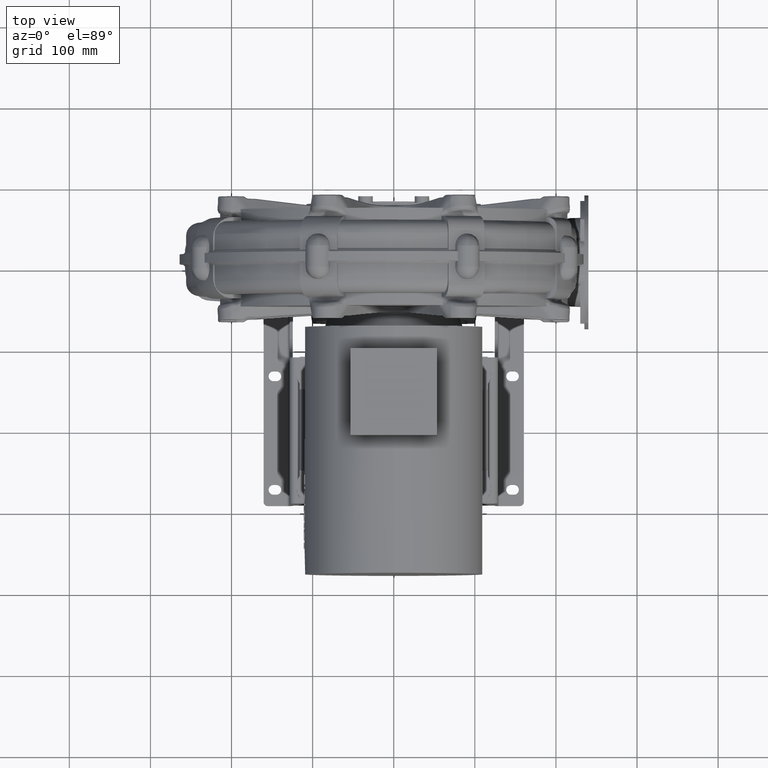
[diagram: clean part render]
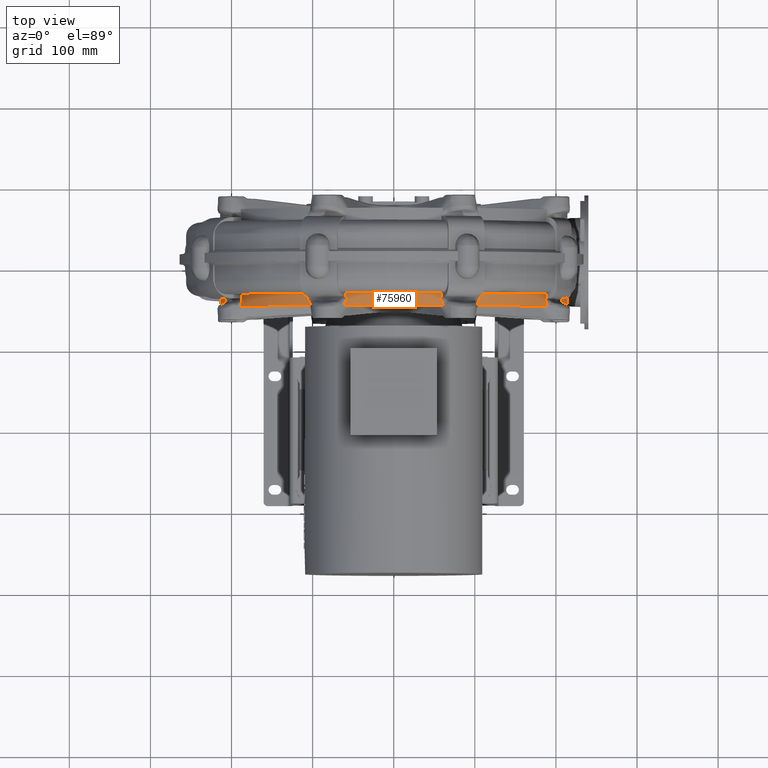
[diagram: same view with one face highlighted and labeled with its STEP entity id]
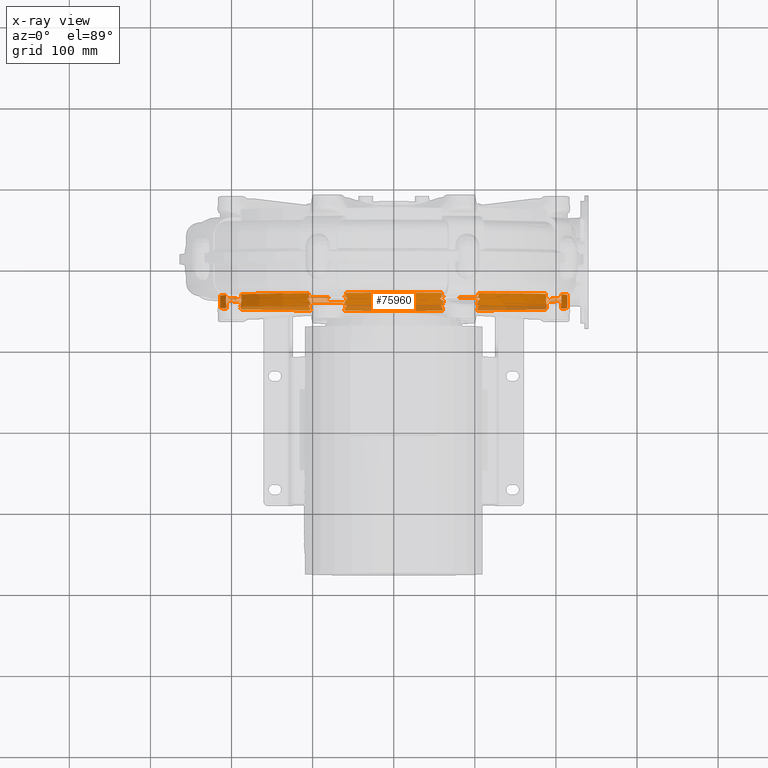
[diagram: x-ray of the same camera — body ghosted, the highlighted face saturated]
A machine part, top view. The second image highlights one B-rep face of the part: STEP entity #75960.
The next image is the same camera in x-ray: the body ghosted, the highlighted face saturated — about 29% of this face is hidden behind the body in this view.
In plain terms, the highlighted cylindrical surface (partial cylindrical patch) has radius 215 mm, axis along (-0, 1, 0).
Its self-contained STEP definition (entity closure, byte-faithful):
#8850=CARTESIAN_POINT('',(206.71595808256819,164.19575424310091,86.894055510415029));
#8851=VERTEX_POINT('',#8850);
#8882=CARTESIAN_POINT('',(206.71595808256842,164.19575424310091,205.10594448958386));
#8883=VERTEX_POINT('',#8882);
#8903=CARTESIAN_POINT('',(206.71595808256842,164.19575424310085,205.10594448958386));
#8904=CARTESIAN_POINT('',(209.08060080658163,164.22476933322622,196.8358899216629));
#8905=CARTESIAN_POINT('',(210.95151970970193,164.24864032036766,188.4150131256356));
#8906=CARTESIAN_POINT('',(216.74225590047999,164.32339118475289,152.13440843495033));
#8907=CARTESIAN_POINT('',(215.68759241236833,164.30802880881458,123.78076867306842));
#8908=CARTESIAN_POINT('',(208.4499315399986,164.21716870557771,93.232084890461238));
#8909=CARTESIAN_POINT('',(207.61872267040783,164.20683151731743,90.051366476508647));
#8910=CARTESIAN_POINT('',(206.71595808256819,164.19575424310085,86.894055510415029));
#8911=B_SPLINE_CURVE_WITH_KNOTS('',3,(#8903,#8904,#8905,#8906,#8907,#8908,#8909,#8910),.UNSPECIFIED.,.F.,.U.,(4,2,2,4),(-28.064767838433802,-25.474036228566337,-17.042852761538491,-16.055728599990875),.UNSPECIFIED.);
#8912=EDGE_CURVE('',#8883,#8851,#8911,.T.);
#8972=CARTESIAN_POINT('',(61.390037439154042,161.312878041179,-60.049176904978921));
#8973=VERTEX_POINT('',#8972);
#8981=CARTESIAN_POINT('',(8.99999999999989,163.49999999999963,-68.81154531356097));
#8982=VERTEX_POINT('',#8981);
#8983=CARTESIAN_POINT('',(61.390037439133103,161.3128780411796,-60.049176904985174));
#8984=CARTESIAN_POINT('',(57.280147695573817,161.4345779665318,-61.273672382315624));
#8985=CARTESIAN_POINT('',(53.051670181341635,161.58672393389421,-62.399674202155438));
#8986=CARTESIAN_POINT('',(35.678656315710214,162.27019857798595,-66.440423895779958));
#8987=CARTESIAN_POINT('',(22.385474294810166,162.89432714604766,-68.250731561779389));
#8988=CARTESIAN_POINT('',(8.99999999999989,163.4999999999996,-68.811545313560956));
#8989=B_SPLINE_CURVE_WITH_KNOTS('',3,(#8983,#8984,#8985,#8986,#8987,#8988),.UNSPECIFIED.,.F.,.U.,(4,2,4),(-5.365241149305022,-4.02327039099419,0.0),.UNSPECIFIED.);
#8990=EDGE_CURVE('',#8973,#8982,#8989,.T.);
#9033=CARTESIAN_POINT('',(-104.37604158263764,163.4999999999996,-41.964469896679034));
#9034=VERTEX_POINT('',#9033);
#9041=CARTESIAN_POINT('',(-187.96446989667916,163.4999999999996,41.62395841736263));
#9042=VERTEX_POINT('',#9041);
#9043=CARTESIAN_POINT('',(-6.106227E-014,163.49999999999963,145.99999999999989));
#9044=DIRECTION('',(0.0,1.0,0.0));
#9045=DIRECTION('',(1.0,0.0,0.0));
#9046=AXIS2_PLACEMENT_3D('',#9043,#9044,#9045);
#9047=CIRCLE('',#9046,215.0);
#9048=EDGE_CURVE('',#9034,#9042,#9047,.T.);
#17499=CARTESIAN_POINT('',(-104.37604158263717,163.4999999999996,333.96446989667902));
#17500=VERTEX_POINT('',#17499);
#17508=CARTESIAN_POINT('',(-187.96446989667891,163.4999999999996,250.37604158263761));
#17509=VERTEX_POINT('',#17508);
#17516=CARTESIAN_POINT('',(-6.106227E-014,163.49999999999963,145.99999999999989));
#17517=DIRECTION('',(0.0,1.0,0.0));
#17518=DIRECTION('',(1.0,0.0,0.0));
#17519=AXIS2_PLACEMENT_3D('',#17516,#17517,#17518);
#17520=CIRCLE('',#17519,215.0);
#17521=EDGE_CURVE('',#17509,#17500,#17520,.T.);
#17531=CARTESIAN_POINT('',(-59.105944489584097,163.4999999999996,352.71595808256836));
#17532=VERTEX_POINT('',#17531);
#17539=CARTESIAN_POINT('',(59.105944489584644,163.49999999999963,352.71595808256819));
#17540=VERTEX_POINT('',#17539);
#17541=CARTESIAN_POINT('',(-6.106227E-014,163.49999999999963,145.99999999999989));
#17542=DIRECTION('',(0.0,1.0,0.0));
#17543=DIRECTION('',(1.0,0.0,0.0));
#17544=AXIS2_PLACEMENT_3D('',#17541,#17542,#17543);
#17545=CIRCLE('',#17544,215.0);
#17546=EDGE_CURVE('',#17532,#17540,#17545,.T.);
#17566=CARTESIAN_POINT('',(-206.71595808256853,163.4999999999996,86.89405551041574));
#17567=VERTEX_POINT('',#17566);
#17574=CARTESIAN_POINT('',(-206.71595808256836,163.4999999999996,205.10594448958457));
#17575=VERTEX_POINT('',#17574);
#17576=CARTESIAN_POINT('',(-6.106227E-014,163.49999999999963,145.99999999999989));
#17577=DIRECTION('',(0.0,1.0,0.0));
#17578=DIRECTION('',(1.0,0.0,0.0));
#17579=AXIS2_PLACEMENT_3D('',#17576,#17577,#17578);
#17580=CIRCLE('',#17579,215.0);
#17581=EDGE_CURVE('',#17567,#17575,#17580,.T.);
#17607=CARTESIAN_POINT('',(104.37604158263767,163.49999999999966,333.96446989667874));
#17608=VERTEX_POINT('',#17607);
#17615=CARTESIAN_POINT('',(121.0971440931658,163.49999999999966,323.65269964872192));
#17616=VERTEX_POINT('',#17615);
#17617=CARTESIAN_POINT('',(-6.106227E-014,163.49999999999963,145.99999999999989));
#17618=DIRECTION('',(0.0,1.0,0.0));
#17619=DIRECTION('',(1.0,0.0,0.0));
#17620=AXIS2_PLACEMENT_3D('',#17617,#17618,#17619);
#17621=CIRCLE('',#17620,215.0);
#17622=EDGE_CURVE('',#17608,#17616,#17621,.T.);
#17639=CARTESIAN_POINT('',(-59.105944489584637,163.4999999999996,-60.715958082568463));
#17640=VERTEX_POINT('',#17639);
#17659=CARTESIAN_POINT('',(-6.106227E-014,163.49999999999963,145.99999999999989));
#17660=DIRECTION('',(0.0,1.0,0.0));
#17661=DIRECTION('',(1.0,0.0,0.0));
#17662=AXIS2_PLACEMENT_3D('',#17659,#17660,#17661);
#17663=CIRCLE('',#17662,215.0);
#17664=EDGE_CURVE('',#8982,#17640,#17663,.T.);
#17698=CARTESIAN_POINT('',(153.84763018902521,163.7011918821635,296.18624000396233));
#17699=VERTEX_POINT('',#17698);
#17700=CARTESIAN_POINT('',(121.09714409316578,163.49999999999963,323.65269964872186));
#17701=CARTESIAN_POINT('',(132.88254746263112,163.49999999999963,315.61916740941319));
#17702=CARTESIAN_POINT('',(143.85626219424432,163.56597242954194,306.4211875440941));
#17703=CARTESIAN_POINT('',(153.8476301868568,163.70119188119207,296.18624000183269));
#17704=B_SPLINE_CURVE_WITH_KNOTS('',3,(#17700,#17701,#17702,#17703),.UNSPECIFIED.,.F.,.U.,(4,4),(-5.062698382807631,-0.764795556639314),.UNSPECIFIED.);
#17705=EDGE_CURVE('',#17616,#17699,#17704,.T.);
#17855=CARTESIAN_POINT('',(187.96446989667871,163.98538551914208,41.623958417362026));
#17856=VERTEX_POINT('',#17855);
#17876=CARTESIAN_POINT('',(113.19143500979118,163.52374858237869,-36.791408552000163));
#17877=VERTEX_POINT('',#17876);
#17878=CARTESIAN_POINT('',(187.96446989667868,163.98538551914203,41.623958417362068));
#17879=CARTESIAN_POINT('',(183.78691533808879,163.94286570523042,34.100854301096994));
#17880=CARTESIAN_POINT('',(179.15298210391725,163.89855932978125,26.820022641245487));
#17881=CARTESIAN_POINT('',(157.66032677763735,163.71228993142682,-2.832898289043015));
#17882=CARTESIAN_POINT('',(136.97461787249514,163.57684942551597,-22.063951618137203));
#17883=CARTESIAN_POINT('',(113.19143500979118,163.52374858237866,-36.791408552000185));
#17884=B_SPLINE_CURVE_WITH_KNOTS('',3,(#17878,#17879,#17880,#17881,#17882,#17883),.UNSPECIFIED.,.F.,.U.,(4,2,4),(-11.124755191765603,-8.53257511856696,-0.13776810869515),.UNSPECIFIED.);
#17885=EDGE_CURVE('',#17856,#17877,#17884,.T.);
#17914=CARTESIAN_POINT('',(187.96446989667908,163.98538551914208,250.37604158263696));
#17915=VERTEX_POINT('',#17914);
#17945=CARTESIAN_POINT('',(153.84763018685348,163.70119188119071,296.1862400018361));
#17946=CARTESIAN_POINT('',(154.92109348075721,163.70817395985603,295.08660674743385));
#17947=CARTESIAN_POINT('',(155.98299822691069,163.71526400510669,293.97522795738234));
#17948=CARTESIAN_POINT('',(167.1833580445205,163.79189875747372,281.99837779833325));
#17949=CARTESIAN_POINT('',(176.18095969249933,163.86981079526146,270.12132267444701));
#17950=CARTESIAN_POINT('',(185.28794052556694,163.95842840307313,255.09053529206665));
#17951=CARTESIAN_POINT('',(186.64907545292093,163.97199722554001,252.74485549411582));
#17952=CARTESIAN_POINT('',(187.96446989667908,163.98538551914203,250.37604158263704));
#17953=B_SPLINE_CURVE_WITH_KNOTS('',3,(#17945,#17946,#17947,#17948,#17949,#17950,#17951,#17952),.UNSPECIFIED.,.F.,.U.,(4,2,2,4),(-38.728247208160596,-38.267000177801542,-33.808807384440144,-32.994597513290806),.UNSPECIFIED.);
#17954=EDGE_CURVE('',#17699,#17915,#17953,.T.);
#18285=CARTESIAN_POINT('',(-206.71595808256836,158.49999999999957,205.10594448958457));
#18286=VERTEX_POINT('',#18285);
#18287=CARTESIAN_POINT('',(-206.71595808256836,158.4999999999996,205.10594448958457));
#18288=DIRECTION('',(0.0,1.0,0.0));
#18289=VECTOR('',#18288,5.0);
#18290=LINE('',#18287,#18289);
#18291=EDGE_CURVE('',#18286,#17575,#18290,.T.);
#18370=CARTESIAN_POINT('',(104.37604158263767,158.49999999999963,333.96446989667874));
#18371=VERTEX_POINT('',#18370);
#18378=CARTESIAN_POINT('',(104.37604158263767,163.49999999999966,333.96446989667874));
#18379=DIRECTION('',(0.0,-1.0,0.0));
#18380=VECTOR('',#18379,5.0);
#18381=LINE('',#18378,#18380);
#18382=EDGE_CURVE('',#17608,#18371,#18381,.T.);
#18532=CARTESIAN_POINT('',(206.71595808256839,158.49999999999966,205.10594448958386));
#18533=VERTEX_POINT('',#18532);
#18540=CARTESIAN_POINT('',(206.71595808256839,164.19575424310088,205.10594448958386));
#18541=DIRECTION('',(0.0,-1.0,0.0));
#18542=VECTOR('',#18541,5.69575424310122);
#18543=LINE('',#18540,#18542);
#18544=EDGE_CURVE('',#8883,#18533,#18543,.T.);
#18572=CARTESIAN_POINT('',(187.96446989667911,158.49999999999966,250.37604158263696));
#18573=VERTEX_POINT('',#18572);
#18580=CARTESIAN_POINT('',(-5.995204E-014,158.49999999999963,145.99999999999989));
#18581=DIRECTION('',(0.0,-1.0,0.0));
#18582=DIRECTION('',(1.0,0.0,0.0));
#18583=AXIS2_PLACEMENT_3D('',#18580,#18581,#18582);
#18584=CIRCLE('',#18583,215.0);
#18585=EDGE_CURVE('',#18533,#18573,#18584,.T.);
#18607=CARTESIAN_POINT('',(-187.96446989667916,158.4999999999996,41.62395841736263));
#18608=VERTEX_POINT('',#18607);
#18615=CARTESIAN_POINT('',(-206.71595808256853,158.49999999999957,86.89405551041574));
#18616=VERTEX_POINT('',#18615);
#18617=CARTESIAN_POINT('',(-5.995204E-014,158.49999999999963,145.99999999999989));
#18618=DIRECTION('',(0.0,-1.0,0.0));
#18619=DIRECTION('',(1.0,0.0,0.0));
#18620=AXIS2_PLACEMENT_3D('',#18617,#18618,#18619);
#18621=CIRCLE('',#18620,215.0);
#18622=EDGE_CURVE('',#18616,#18608,#18621,.T.);
#18685=CARTESIAN_POINT('',(-187.96446989667916,158.4999999999996,41.62395841736263));
#18686=DIRECTION('',(0.0,1.0,0.0));
#18687=VECTOR('',#18686,5.0);
#18688=LINE('',#18685,#18687);
#18689=EDGE_CURVE('',#18608,#9042,#18688,.T.);
#18749=CARTESIAN_POINT('',(-104.37604158263716,158.4999999999996,333.96446989667902));
#18750=VERTEX_POINT('',#18749);
#18751=CARTESIAN_POINT('',(-104.37604158263717,158.4999999999996,333.96446989667902));
#18752=DIRECTION('',(0.0,1.0,0.0));
#18753=VECTOR('',#18752,5.0);
#18754=LINE('',#18751,#18753);
#18755=EDGE_CURVE('',#18750,#17500,#18754,.T.);
#18828=CARTESIAN_POINT('',(-59.10594448958463,158.4999999999996,-60.715958082568434));
#18829=VERTEX_POINT('',#18828);
#18836=CARTESIAN_POINT('',(-104.37604158263764,158.4999999999996,-41.964469896679034));
#18837=VERTEX_POINT('',#18836);
#18838=CARTESIAN_POINT('',(-5.995204E-014,158.49999999999963,145.99999999999989));
#18839=DIRECTION('',(0.0,-1.0,0.0));
#18840=DIRECTION('',(1.0,0.0,0.0));
#18841=AXIS2_PLACEMENT_3D('',#18838,#18839,#18840);
#18842=CIRCLE('',#18841,215.0);
#18843=EDGE_CURVE('',#18837,#18829,#18842,.T.);
#18892=CARTESIAN_POINT('',(-59.10594448958463,158.49999999999963,-60.715958082568463));
#18893=DIRECTION('',(0.0,1.0,0.0));
#18894=VECTOR('',#18893,5.0);
#18895=LINE('',#18892,#18894);
#18896=EDGE_CURVE('',#18829,#17640,#18895,.T.);
#18932=CARTESIAN_POINT('',(187.96446989667868,158.49999999999966,41.623958417362005));
#18933=VERTEX_POINT('',#18932);
#18940=CARTESIAN_POINT('',(187.96446989667871,163.98538551914208,41.623958417362047));
#18941=DIRECTION('',(0.0,-1.0,0.0));
#18942=VECTOR('',#18941,5.485385519142426);
#18943=LINE('',#18940,#18942);
#18944=EDGE_CURVE('',#17856,#18933,#18943,.T.);
#19356=CARTESIAN_POINT('',(-104.37604158263764,163.4999999999996,-41.964469896679034));
#19357=DIRECTION('',(0.0,-1.0,0.0));
#19358=VECTOR('',#19357,5.0);
#19359=LINE('',#19356,#19358);
#19360=EDGE_CURVE('',#9034,#18837,#19359,.T.);
#19518=CARTESIAN_POINT('',(-206.71595808256853,163.4999999999996,86.89405551041574));
#19519=DIRECTION('',(0.0,-1.0,0.0));
#19520=VECTOR('',#19519,5.0);
#19521=LINE('',#19518,#19520);
#19522=EDGE_CURVE('',#17567,#18616,#19521,.T.);
#19938=CARTESIAN_POINT('',(-59.105944489584097,158.4999999999996,352.71595808256836));
#19939=VERTEX_POINT('',#19938);
#19940=CARTESIAN_POINT('',(-5.995204E-014,158.49999999999963,145.99999999999989));
#19941=DIRECTION('',(0.0,-1.0,0.0));
#19942=DIRECTION('',(1.0,0.0,0.0));
#19943=AXIS2_PLACEMENT_3D('',#19940,#19941,#19942);
#19944=CIRCLE('',#19943,215.0);
#19945=EDGE_CURVE('',#19939,#18750,#19944,.T.);
#19985=CARTESIAN_POINT('',(-59.10594448958409,163.49999999999963,352.71595808256836));
#19986=DIRECTION('',(0.0,-1.0,0.0));
#19987=VECTOR('',#19986,5.0);
#19988=LINE('',#19985,#19987);
#19989=EDGE_CURVE('',#17532,#19939,#19988,.T.);
#20097=CARTESIAN_POINT('',(-187.96446989667891,158.4999999999996,250.37604158263761));
#20098=VERTEX_POINT('',#20097);
#20099=CARTESIAN_POINT('',(-5.995204E-014,158.49999999999963,145.99999999999989));
#20100=DIRECTION('',(0.0,-1.0,0.0));
#20101=DIRECTION('',(1.0,0.0,0.0));
#20102=AXIS2_PLACEMENT_3D('',#20099,#20100,#20101);
#20103=CIRCLE('',#20102,215.0);
#20104=EDGE_CURVE('',#20098,#18286,#20103,.T.);
#20144=CARTESIAN_POINT('',(-187.96446989667891,163.4999999999996,250.37604158263761));
#20145=DIRECTION('',(0.0,-1.0,0.0));
#20146=VECTOR('',#20145,5.0);
#20147=LINE('',#20144,#20146);
#20148=EDGE_CURVE('',#17509,#20098,#20147,.T.);
#20274=CARTESIAN_POINT('',(59.105944489584644,158.49999999999963,352.71595808256819));
#20275=VERTEX_POINT('',#20274);
#20276=CARTESIAN_POINT('',(59.105944489584651,158.49999999999963,352.71595808256819));
#20277=DIRECTION('',(0.0,1.0,0.0));
#20278=VECTOR('',#20277,5.0);
#20279=LINE('',#20276,#20278);
#20280=EDGE_CURVE('',#20275,#17540,#20279,.T.);
#20304=CARTESIAN_POINT('',(-5.995204E-014,158.49999999999963,145.99999999999989));
#20305=DIRECTION('',(0.0,-1.0,0.0));
#20306=DIRECTION('',(1.0,0.0,0.0));
#20307=AXIS2_PLACEMENT_3D('',#20304,#20305,#20306);
#20308=CIRCLE('',#20307,215.0);
#20309=EDGE_CURVE('',#18371,#20275,#20308,.T.);
#20628=CARTESIAN_POINT('',(187.96446989667911,158.49999999999966,250.37604158263696));
#20629=DIRECTION('',(0.0,1.0,0.0));
#20630=VECTOR('',#20629,5.485385519142426);
#20631=LINE('',#20628,#20630);
#20632=EDGE_CURVE('',#18573,#17915,#20631,.T.);
#20847=CARTESIAN_POINT('',(206.71595808256819,158.49999999999966,86.894055510415058));
#20848=VERTEX_POINT('',#20847);
#20849=CARTESIAN_POINT('',(206.71595808256819,158.49999999999966,86.894055510415058));
#20850=DIRECTION('',(0.0,1.0,0.0));
#20851=VECTOR('',#20850,5.695754243101248);
#20852=LINE('',#20849,#20851);
#20853=EDGE_CURVE('',#20848,#8851,#20852,.T.);
#20877=CARTESIAN_POINT('',(-5.995204E-014,158.49999999999963,145.99999999999989));
#20878=DIRECTION('',(0.0,-1.0,0.0));
#20879=DIRECTION('',(1.0,0.0,0.0));
#20880=AXIS2_PLACEMENT_3D('',#20877,#20878,#20879);
#20881=CIRCLE('',#20880,215.0);
#20882=EDGE_CURVE('',#18933,#20848,#20881,.T.);
#21650=CARTESIAN_POINT('',(105.5742704048712,162.35454409912342,-41.294082737493824));
#21651=VERTEX_POINT('',#21650);
#21668=CARTESIAN_POINT('',(113.19143500979122,163.52374858237869,-36.791408552000185));
#21669=CARTESIAN_POINT('',(110.74945347200816,163.06269125273269,-38.303576966909297));
#21670=CARTESIAN_POINT('',(108.21127192183503,162.67556692167989,-39.807652909309049));
#21671=CARTESIAN_POINT('',(105.57427040876144,162.35454409959701,-41.294082735300947));
#21672=B_SPLINE_CURVE_WITH_KNOTS('',3,(#21668,#21669,#21670,#21671),.UNSPECIFIED.,.F.,.U.,(4,4),(-11.974525727075308,-10.831865115836202),.UNSPECIFIED.);
#21673=EDGE_CURVE('',#17877,#21651,#21672,.T.);
#21685=CARTESIAN_POINT('',(105.57427040439759,155.5273361894331,-41.294082737795975));
#21686=VERTEX_POINT('',#21685);
#21694=CARTESIAN_POINT('',(105.5742704048712,151.52899999999966,-41.294082737493824));
#21695=VERTEX_POINT('',#21694);
#21696=CARTESIAN_POINT('',(105.57427040439759,155.52733618943307,-41.294082737795975));
#21697=DIRECTION('',(0.0,-1.0,0.0));
#21698=VECTOR('',#21697,3.998336189433417);
#21699=LINE('',#21696,#21698);
#21700=EDGE_CURVE('',#21686,#21695,#21699,.T.);
#21737=CARTESIAN_POINT('',(105.57427040192107,157.74810920713196,-41.294082739155947));
#21738=VERTEX_POINT('',#21737);
#21739=CARTESIAN_POINT('',(105.57427040439759,162.35454409912342,-41.294082737795975));
#21740=DIRECTION('',(0.0,-1.0,0.0));
#21741=VECTOR('',#21740,4.606434895911264);
#21742=LINE('',#21739,#21741);
#21743=EDGE_CURVE('',#21651,#21738,#21742,.T.);
#72157=CARTESIAN_POINT('',(60.762725504421425,148.49999999999963,352.23503870408217));
#72158=VERTEX_POINT('',#72157);
#72166=CARTESIAN_POINT('',(-60.762725504419912,148.4999999999996,352.23503870408274));
#72167=VERTEX_POINT('',#72166);
#72168=CARTESIAN_POINT('',(-5.773160E-014,148.49999999999963,145.99999999999989));
#72169=DIRECTION('',(0.0,1.0,0.0));
#72170=DIRECTION('',(1.0,0.0,0.0));
#72171=AXIS2_PLACEMENT_3D('',#72168,#72169,#72170);
#72172=CIRCLE('',#72171,215.0);
#72173=EDGE_CURVE('',#72167,#72158,#72172,.T.);
#72457=CARTESIAN_POINT('',(-60.762725504421269,148.49999999999963,-60.23503870408252));
#72458=VERTEX_POINT('',#72457);
#72466=CARTESIAN_POINT('',(60.762725504419741,148.49999999999963,-60.235038704082939));
#72467=VERTEX_POINT('',#72466);
#72468=CARTESIAN_POINT('',(-5.773160E-014,148.49999999999963,145.99999999999989));
#72469=DIRECTION('',(0.0,1.0,0.0));
#72470=DIRECTION('',(1.0,0.0,0.0));
#72471=AXIS2_PLACEMENT_3D('',#72468,#72469,#72470);
#72472=CIRCLE('',#72471,215.0);
#72473=EDGE_CURVE('',#72467,#72458,#72472,.T.);
#72588=CARTESIAN_POINT('',(102.86445913837376,148.49999999999966,-42.795929633479858));
#72589=VERTEX_POINT('',#72588);
#72597=CARTESIAN_POINT('',(188.79592963347892,148.49999999999969,43.13554086162469));
#72598=VERTEX_POINT('',#72597);
#72599=CARTESIAN_POINT('',(-5.773160E-014,148.49999999999963,145.99999999999989));
#72600=DIRECTION('',(0.0,1.0,0.0));
#72601=DIRECTION('',(1.0,0.0,0.0));
#72602=AXIS2_PLACEMENT_3D('',#72599,#72600,#72601);
#72603=CIRCLE('',#72602,215.0);
#72604=EDGE_CURVE('',#72598,#72589,#72603,.T.);
#72866=CARTESIAN_POINT('',(206.23503870408223,148.49999999999966,85.237274495578362));
#72867=VERTEX_POINT('',#72866);
#72875=CARTESIAN_POINT('',(206.23503870408268,148.49999999999966,206.76272550441968));
#72876=VERTEX_POINT('',#72875);
#72877=CARTESIAN_POINT('',(-5.773160E-014,148.49999999999963,145.99999999999989));
#72878=DIRECTION('',(0.0,1.0,0.0));
#72879=DIRECTION('',(1.0,0.0,0.0));
#72880=AXIS2_PLACEMENT_3D('',#72877,#72878,#72879);
#72881=CIRCLE('',#72880,215.0);
#72882=EDGE_CURVE('',#72876,#72867,#72881,.T.);
#73102=CARTESIAN_POINT('',(188.79592963347972,148.49999999999969,248.86445913837352));
#73103=VERTEX_POINT('',#73102);
#73111=CARTESIAN_POINT('',(102.86445913837494,148.49999999999966,334.79592963347892));
#73112=VERTEX_POINT('',#73111);
#73113=CARTESIAN_POINT('',(-5.773160E-014,148.49999999999963,145.99999999999989));
#73114=DIRECTION('',(0.0,1.0,0.0));
#73115=DIRECTION('',(1.0,0.0,0.0));
#73116=AXIS2_PLACEMENT_3D('',#73113,#73114,#73115);
#73117=CIRCLE('',#73116,215.0);
#73118=EDGE_CURVE('',#73112,#73103,#73117,.T.);
#73334=CARTESIAN_POINT('',(-102.86445913837355,148.4999999999996,334.79592963347983));
#73335=VERTEX_POINT('',#73334);
#73343=CARTESIAN_POINT('',(-188.79592963347901,148.4999999999996,248.86445913837517));
#73344=VERTEX_POINT('',#73343);
#73345=CARTESIAN_POINT('',(-5.773160E-014,148.49999999999963,145.99999999999989));
#73346=DIRECTION('',(0.0,1.0,0.0));
#73347=DIRECTION('',(1.0,0.0,0.0));
#73348=AXIS2_PLACEMENT_3D('',#73345,#73346,#73347);
#73349=CIRCLE('',#73348,215.0);
#73350=EDGE_CURVE('',#73344,#73335,#73349,.T.);
#73566=CARTESIAN_POINT('',(-206.2350387040824,148.49999999999957,206.76272550442133));
#73567=VERTEX_POINT('',#73566);
#73575=CARTESIAN_POINT('',(-206.2350387040828,148.49999999999957,85.237274495579896));
#73576=VERTEX_POINT('',#73575);
#73577=CARTESIAN_POINT('',(-5.773160E-014,148.49999999999963,145.99999999999989));
#73578=DIRECTION('',(0.0,1.0,0.0));
#73579=DIRECTION('',(1.0,0.0,0.0));
#73580=AXIS2_PLACEMENT_3D('',#73577,#73578,#73579);
#73581=CIRCLE('',#73580,215.0);
#73582=EDGE_CURVE('',#73576,#73567,#73581,.T.);
#73805=CARTESIAN_POINT('',(-188.79592963347983,148.49999999999957,43.135540861626176));
#73806=VERTEX_POINT('',#73805);
#73814=CARTESIAN_POINT('',(-102.86445913837497,148.49999999999963,-42.795929633479247));
#73815=VERTEX_POINT('',#73814);
#73816=CARTESIAN_POINT('',(-5.773160E-014,148.49999999999963,145.99999999999989));
#73817=DIRECTION('',(0.0,1.0,0.0));
#73818=DIRECTION('',(1.0,0.0,0.0));
#73819=AXIS2_PLACEMENT_3D('',#73816,#73817,#73818);
#73820=CIRCLE('',#73819,215.0);
#73821=EDGE_CURVE('',#73815,#73806,#73820,.T.);
#75003=CARTESIAN_POINT('',(-7.216450E-014,208.49999999999963,145.99999999999989));
#75004=DIRECTION('',(-2.400880E-016,1.0,5.334183E-018));
#75005=DIRECTION('',(1.0,0.0,0.0));
#75006=AXIS2_PLACEMENT_3D('',#75003,#75004,#75005);
#75007=CYLINDRICAL_SURFACE('',#75006,215.0);
#75008=ORIENTED_EDGE('',*,*,#21743,.F.);
#75009=ORIENTED_EDGE('',*,*,#21673,.F.);
#75010=ORIENTED_EDGE('',*,*,#17885,.F.);
#75011=ORIENTED_EDGE('',*,*,#18944,.T.);
#75012=ORIENTED_EDGE('',*,*,#20882,.T.);
#75013=ORIENTED_EDGE('',*,*,#20853,.T.);
#75014=ORIENTED_EDGE('',*,*,#8912,.F.);
#75015=ORIENTED_EDGE('',*,*,#18544,.T.);
#75016=ORIENTED_EDGE('',*,*,#18585,.T.);
#75017=ORIENTED_EDGE('',*,*,#20632,.T.);
#75018=ORIENTED_EDGE('',*,*,#17954,.F.);
#75019=ORIENTED_EDGE('',*,*,#17705,.F.);
#75020=ORIENTED_EDGE('',*,*,#17622,.F.);
#75021=ORIENTED_EDGE('',*,*,#18382,.T.);
#75022=ORIENTED_EDGE('',*,*,#20309,.T.);
#75023=ORIENTED_EDGE('',*,*,#20280,.T.);
#75024=ORIENTED_EDGE('',*,*,#17546,.F.);
#75025=ORIENTED_EDGE('',*,*,#19989,.T.);
#75026=ORIENTED_EDGE('',*,*,#19945,.T.);
#75027=ORIENTED_EDGE('',*,*,#18755,.T.);
#75028=ORIENTED_EDGE('',*,*,#17521,.F.);
#75029=ORIENTED_EDGE('',*,*,#20148,.T.);
#75030=ORIENTED_EDGE('',*,*,#20104,.T.);
#75031=ORIENTED_EDGE('',*,*,#18291,.T.);
#75032=ORIENTED_EDGE('',*,*,#17581,.F.);
#75033=ORIENTED_EDGE('',*,*,#19522,.T.);
#75034=ORIENTED_EDGE('',*,*,#18622,.T.);
#75035=ORIENTED_EDGE('',*,*,#18689,.T.);
#75036=ORIENTED_EDGE('',*,*,#9048,.F.);
#75037=ORIENTED_EDGE('',*,*,#19360,.T.);
#75038=ORIENTED_EDGE('',*,*,#18843,.T.);
#75039=ORIENTED_EDGE('',*,*,#18896,.T.);
#75040=ORIENTED_EDGE('',*,*,#17664,.F.);
#75041=ORIENTED_EDGE('',*,*,#8990,.F.);
#75042=CARTESIAN_POINT('',(61.390037439154028,157.99999999999997,-60.049176904978921));
#75043=VERTEX_POINT('',#75042);
#75044=CARTESIAN_POINT('',(61.390037439154035,161.31287804117898,-60.049176904978921));
#75045=DIRECTION('',(0.0,-1.0,0.0));
#75046=VECTOR('',#75045,3.312878041179005);
#75047=LINE('',#75044,#75046);
#75048=EDGE_CURVE('',#8973,#75043,#75047,.T.);
#75049=ORIENTED_EDGE('',*,*,#75048,.T.);
#75050=CARTESIAN_POINT('',(57.962834748347738,157.99999999996777,-61.039391874928995));
#75051=VERTEX_POINT('',#75050);
#75052=CARTESIAN_POINT('',(-6.004005E-014,157.9999999999998,145.99999999999989));
#75053=DIRECTION('',(0.0,1.0,0.0));
#75054=DIRECTION('',(1.0,0.0,0.0));
#75055=AXIS2_PLACEMENT_3D('',#75052,#75053,#75054);
#75056=CIRCLE('',#75055,215.0);
#75057=EDGE_CURVE('',#75043,#75051,#75056,.T.);
#75058=ORIENTED_EDGE('',*,*,#75057,.T.);
#75059=CARTESIAN_POINT('',(56.695603653673729,156.49999999999983,-61.389991384217041));
#75060=VERTEX_POINT('',#75059);
#75061=CARTESIAN_POINT('',(57.962834748349536,157.9999999999643,-61.039391874917314));
#75062=CARTESIAN_POINT('',(57.593672937021736,157.46046072331677,-61.142742570027167));
#75063=CARTESIAN_POINT('',(57.174366998409951,156.96250854292626,-61.259086784102273));
#75064=CARTESIAN_POINT('',(56.7015257189815,156.50571015824983,-61.38837236100224));
#75065=CARTESIAN_POINT('',(56.69856552109043,156.50285405645508,-61.38918167850268));
#75066=CARTESIAN_POINT('',(56.69560365367397,156.49999999999801,-61.389991384217012));
#75067=B_SPLINE_CURVE_WITH_KNOTS('',3,(#75061,#75062,#75063,#75064,#75065,#75066),.UNSPECIFIED.,.F.,.U.,(4,2,4),(0.674126964580451,0.873300324550489,0.874554297655099),.UNSPECIFIED.);
#75068=EDGE_CURVE('',#75051,#75060,#75067,.T.);
#75069=ORIENTED_EDGE('',*,*,#75068,.T.);
#75070=CARTESIAN_POINT('',(57.659040068991807,155.65483730710133,-61.124202106664598));
#75071=VERTEX_POINT('',#75070);
#75072=CARTESIAN_POINT('',(56.69560365367397,156.49999999999801,-61.389991384217012));
#75073=CARTESIAN_POINT('',(56.699153152698244,156.49725540106206,-61.389021033678361));
#75074=CARTESIAN_POINT('',(56.702701114646487,156.49450845868449,-61.388051005401032));
#75075=CARTESIAN_POINT('',(57.043869362933265,156.23002484800747,-61.294764717099881));
#75076=CARTESIAN_POINT('',(57.360950311994536,155.95200748877792,-61.207184052125584));
#75077=CARTESIAN_POINT('',(57.659040068991807,155.65483730710133,-61.124202106664626));
#75078=B_SPLINE_CURVE_WITH_KNOTS('',3,(#75072,#75073,#75074,#75075,#75076,#75077),.UNSPECIFIED.,.F.,.U.,(4,2,4),(-0.001377171453712,0.0,0.131116117805308),.UNSPECIFIED.);
#75079=EDGE_CURVE('',#75060,#75071,#75078,.T.);
#75080=ORIENTED_EDGE('',*,*,#75079,.T.);
#75081=CARTESIAN_POINT('',(60.407089415417559,150.59847557803442,-60.339486158994291));
#75082=VERTEX_POINT('',#75081);
#75083=CARTESIAN_POINT('',(57.659040068991764,155.65483730710127,-61.124202106664605));
#75084=CARTESIAN_POINT('',(58.06078505506936,155.25433166174491,-61.012364716276799));
#75085=CARTESIAN_POINT('',(58.425819640614058,154.8213887563092,-60.909497953580846));
#75086=CARTESIAN_POINT('',(59.119583700118163,153.83743727077609,-60.712406189391707));
#75087=CARTESIAN_POINT('',(59.435334981702326,153.28467647790274,-60.621675272469773));
#75088=CARTESIAN_POINT('',(60.006904862168511,152.03123252134509,-60.456469061858513));
#75089=CARTESIAN_POINT('',(60.243222491740497,151.32446067549864,-60.387459157740871));
#75090=CARTESIAN_POINT('',(60.407089415923181,150.59847557579434,-60.339486158846249));
#75091=B_SPLINE_CURVE_WITH_KNOTS('',3,(#75083,#75084,#75085,#75086,#75087,#75088,#75089,#75090),.UNSPECIFIED.,.F.,.U.,(4,2,2,4),(0.016233834265861,0.1899844468325,0.382987759198715,0.607241688592636),.UNSPECIFIED.);
#75092=EDGE_CURVE('',#75071,#75082,#75091,.T.);
#75093=ORIENTED_EDGE('',*,*,#75092,.T.);
#75094=CARTESIAN_POINT('',(60.744433987515606,148.65229692435591,-60.24042701678384));
#75095=VERTEX_POINT('',#75094);
#75096=CARTESIAN_POINT('',(60.407089415666057,150.5984755769334,-60.339486158921517));
#75097=CARTESIAN_POINT('',(60.551715881460552,149.95773212238171,-60.297145916567757));
#75098=CARTESIAN_POINT('',(60.667281729907558,149.30633488674502,-60.263150844615353));
#75099=CARTESIAN_POINT('',(60.744433997420295,148.65229694184552,-60.240427022281658));
#75100=B_SPLINE_CURVE_WITH_KNOTS('',3,(#75096,#75097,#75098,#75099),.UNSPECIFIED.,.F.,.U.,(4,4),(0.0,0.197467849725835),.UNSPECIFIED.);
#75101=EDGE_CURVE('',#75082,#75095,#75100,.T.);
#75102=ORIENTED_EDGE('',*,*,#75101,.T.);
#75103=CARTESIAN_POINT('',(60.744433999339115,148.65229692557926,-60.240427021716513));
#75104=CARTESIAN_POINT('',(60.750420993648021,148.60154376478516,-60.238663659479997));
#75105=CARTESIAN_POINT('',(60.756517213977062,148.55078778955968,-60.236867843546264));
#75106=CARTESIAN_POINT('',(60.76272550441972,148.49999999999963,-60.23503870408291));
#75107=B_SPLINE_CURVE_WITH_KNOTS('',3,(#75103,#75104,#75105,#75106),.UNSPECIFIED.,.F.,.U.,(4,4),(5.637089931344642,5.65192764782409),.UNSPECIFIED.);
#75108=EDGE_CURVE('',#75095,#72467,#75107,.T.);
#75109=ORIENTED_EDGE('',*,*,#75108,.T.);
#75110=ORIENTED_EDGE('',*,*,#72473,.T.);
#75111=CARTESIAN_POINT('',(-60.744433987436672,148.65229692421383,-60.240427016738764));
#75112=VERTEX_POINT('',#75111);
#75113=CARTESIAN_POINT('',(-60.762725504421311,148.49999999999963,-60.235038704082513));
#75114=CARTESIAN_POINT('',(-60.756517233344283,148.55078763113642,-60.236867837840194));
#75115=CARTESIAN_POINT('',(-60.750420972164449,148.6015439469212,-60.238663665807636));
#75116=CARTESIAN_POINT('',(-60.744433999356247,148.6522969254471,-60.240427021711504));
#75117=B_SPLINE_CURVE_WITH_KNOTS('',3,(#75113,#75114,#75115,#75116),.UNSPECIFIED.,.F.,.U.,(4,4),(2.044808862133155,2.059646583121261),.UNSPECIFIED.);
#75118=EDGE_CURVE('',#72458,#75112,#75117,.T.);
#75119=ORIENTED_EDGE('',*,*,#75118,.T.);
#75120=CARTESIAN_POINT('',(-60.407089415423357,150.59847557801558,-60.339486158992628));
#75121=VERTEX_POINT('',#75120);
#75122=CARTESIAN_POINT('',(-60.744433997421851,148.65229694184552,-60.240427022281253));
#75123=CARTESIAN_POINT('',(-60.667281729910528,149.306334886733,-60.263150844614522));
#75124=CARTESIAN_POINT('',(-60.551715881466365,149.95773212235781,-60.29714591656608));
#75125=CARTESIAN_POINT('',(-60.407089415675571,150.5984755768983,-60.339486158918774));
#75126=B_SPLINE_CURVE_WITH_KNOTS('',3,(#75122,#75123,#75124,#75125),.UNSPECIFIED.,.F.,.U.,(4,4),(0.0,0.197689410453008),.UNSPECIFIED.);
#75127=EDGE_CURVE('',#75112,#75121,#75126,.T.);
#75128=ORIENTED_EDGE('',*,*,#75127,.T.);
#75129=CARTESIAN_POINT('',(-57.659040068993541,155.65483730710127,-61.124202106664157));
#75130=VERTEX_POINT('',#75129);
#75131=CARTESIAN_POINT('',(-60.407089415936461,150.59847557574241,-60.339486158842405));
#75132=CARTESIAN_POINT('',(-60.242085702071158,151.32949703270964,-60.387791959554491));
#75133=CARTESIAN_POINT('',(-60.003625181769877,152.04102680291172,-60.457427311369862));
#75134=CARTESIAN_POINT('',(-59.32342479747426,153.52693256664466,-60.654009219584793));
#75135=CARTESIAN_POINT('',(-58.710911344350706,154.60621094319305,-60.831383172921122));
#75136=CARTESIAN_POINT('',(-57.65904006899342,155.65483730710116,-61.12420210666415));
#75137=B_SPLINE_CURVE_WITH_KNOTS('',3,(#75131,#75132,#75133,#75134,#75135,#75136),.UNSPECIFIED.,.F.,.U.,(4,2,4),(0.0,0.22529022212836,0.493855889562158),.UNSPECIFIED.);
#75138=EDGE_CURVE('',#75121,#75130,#75137,.T.);
#75139=ORIENTED_EDGE('',*,*,#75138,.T.);
#75140=CARTESIAN_POINT('',(-56.695603653675263,156.4999999999998,-61.389991384216614));
#75141=VERTEX_POINT('',#75140);
#75142=CARTESIAN_POINT('',(-57.659040068993541,155.65483730710127,-61.124202106664143));
#75143=CARTESIAN_POINT('',(-57.360835485953714,155.9521219605943,-61.207216017290563));
#75144=CARTESIAN_POINT('',(-57.043754977075082,156.23011462446615,-61.294796024277247));
#75145=CARTESIAN_POINT('',(-56.702689488393645,156.49451746016126,-61.388054184069688));
#75146=CARTESIAN_POINT('',(-56.699147369559178,156.49725987279146,-61.389022614654174));
#75147=CARTESIAN_POINT('',(-56.695603653675605,156.49999999999724,-61.389991384216557));
#75148=B_SPLINE_CURVE_WITH_KNOTS('',3,(#75142,#75143,#75144,#75145,#75146,#75147),.UNSPECIFIED.,.F.,.U.,(4,2,4),(0.769708955470285,0.899780682718268,0.901145052554274),.UNSPECIFIED.);
#75149=EDGE_CURVE('',#75130,#75141,#75148,.T.);
#75150=ORIENTED_EDGE('',*,*,#75149,.T.);
#75151=CARTESIAN_POINT('',(-57.962834748375805,157.9999999999998,-61.039391874910024));
#75152=VERTEX_POINT('',#75151);
#75153=CARTESIAN_POINT('',(-56.695603653675605,156.49999999999724,-61.389991384216557));
#75154=CARTESIAN_POINT('',(-56.698561509256336,156.50285019064802,-61.389182775244876));
#75155=CARTESIAN_POINT('',(-56.701517662051018,156.50570238459079,-61.388374563765595));
#75156=CARTESIAN_POINT('',(-57.174359714633013,156.96249992796442,-61.259088805018187));
#75157=CARTESIAN_POINT('',(-57.593669419071993,157.46045558173694,-61.142743554913906));
#75158=CARTESIAN_POINT('',(-57.962834748375663,157.99999999999989,-61.03939187491001));
#75159=B_SPLINE_CURVE_WITH_KNOTS('',3,(#75153,#75154,#75155,#75156,#75157,#75158),.UNSPECIFIED.,.F.,.U.,(4,2,4),(-0.001255934328154,0.0,0.199757142053291),.UNSPECIFIED.);
#75160=EDGE_CURVE('',#75141,#75152,#75159,.T.);
#75161=ORIENTED_EDGE('',*,*,#75160,.T.);
#75162=CARTESIAN_POINT('',(-105.41304446011506,158.00000000000213,-41.38487147485931));
#75163=VERTEX_POINT('',#75162);
#75164=CARTESIAN_POINT('',(-6.004005E-014,157.9999999999998,145.99999999999989));
#75165=DIRECTION('',(0.0,1.0,0.0));
#75166=DIRECTION('',(1.0,0.0,0.0));
#75167=AXIS2_PLACEMENT_3D('',#75164,#75165,#75166);
#75168=CIRCLE('',#75167,215.0);
#75169=EDGE_CURVE('',#75152,#75163,#75168,.T.);
#75170=ORIENTED_EDGE('',*,*,#75169,.T.);
#75171=CARTESIAN_POINT('',(-106.55702345102188,156.4999999999998,-40.736715064977119));
#75172=VERTEX_POINT('',#75171);
#75173=CARTESIAN_POINT('',(-105.41304446011581,158.00000000000244,-41.384871474859715));
#75174=CARTESIAN_POINT('',(-105.74715267572914,157.46047458156798,-41.196919459791815));
#75175=CARTESIAN_POINT('',(-106.12590650945072,156.96252987402076,-40.982697742083673));
#75176=CARTESIAN_POINT('',(-106.55167478016963,156.50572764122035,-40.739767085120029));
#75177=CARTESIAN_POINT('',(-106.55434834670575,156.50286283123231,-40.738241551898788));
#75178=CARTESIAN_POINT('',(-106.55702345102186,156.49999999999966,-40.736715064977098));
#75179=B_SPLINE_CURVE_WITH_KNOTS('',3,(#75173,#75174,#75175,#75176,#75177,#75178),.UNSPECIFIED.,.F.,.U.,(4,2,4),(0.674127094375988,0.873296174214753,0.874553994605073),.UNSPECIFIED.);
#75180=EDGE_CURVE('',#75163,#75172,#75179,.T.);
#75181=ORIENTED_EDGE('',*,*,#75180,.T.);
#75182=CARTESIAN_POINT('',(-105.68782962798397,155.65483730710122,-41.230026086966873));
#75183=VERTEX_POINT('',#75182);
#75184=CARTESIAN_POINT('',(-106.55702345102186,156.49999999999966,-40.736715064977098));
#75185=CARTESIAN_POINT('',(-106.55381559654792,156.49724523493722,-40.738545553557167));
#75186=CARTESIAN_POINT('',(-106.55060915946152,156.49448818902664,-40.74037512376286));
#75187=CARTESIAN_POINT('',(-106.24340224766549,156.23000109975885,-40.915654724907114));
#75188=CARTESIAN_POINT('',(-105.95727521508904,155.95199337479517,-41.07792911887293));
#75189=CARTESIAN_POINT('',(-105.68782962798406,155.6548373071011,-41.230026086966795));
#75190=B_SPLINE_CURVE_WITH_KNOTS('',3,(#75184,#75185,#75186,#75187,#75188,#75189),.UNSPECIFIED.,.F.,.U.,(4,2,4),(-0.001382272563038,0.0,0.131111954126161),.UNSPECIFIED.);
#75191=EDGE_CURVE('',#75172,#75183,#75190,.T.);
#75192=ORIENTED_EDGE('',*,*,#75191,.T.);
#75193=CARTESIAN_POINT('',(-103.18978733218466,150.59847557801555,-42.618312446958768));
#75194=VERTEX_POINT('',#75193);
#75195=CARTESIAN_POINT('',(-105.687829627984,155.65483730710116,-41.230026086966845));
#75196=CARTESIAN_POINT('',(-105.32407838329861,155.2536769442579,-41.435356825731034));
#75197=CARTESIAN_POINT('',(-104.99273861057303,154.819977059949,-41.621005936935035));
#75198=CARTESIAN_POINT('',(-104.36276575800541,153.83538635663811,-41.972223720887321));
#75199=CARTESIAN_POINT('',(-104.07561596831846,153.28288457982691,-42.131182307193839));
#75200=CARTESIAN_POINT('',(-103.55516129106729,152.03018968685447,-42.418233191709731));
#75201=CARTESIAN_POINT('',(-103.33947014828217,151.32392450101977,-42.536423590251715));
#75202=CARTESIAN_POINT('',(-103.18978733171564,150.59847557574233,-42.618312447215352));
#75203=B_SPLINE_CURVE_WITH_KNOTS('',3,(#75195,#75196,#75197,#75198,#75199,#75200,#75201,#75202),.UNSPECIFIED.,.F.,.U.,(4,2,2,4),(0.015886099088235,0.189914298321557,0.382800639724787,0.606887079648725),.UNSPECIFIED.);
#75204=EDGE_CURVE('',#75183,#75194,#75203,.T.);
#75205=ORIENTED_EDGE('',*,*,#75204,.T.);
#75206=CARTESIAN_POINT('',(-102.88120330649139,148.65229692421389,-42.786805690199614));
#75207=VERTEX_POINT('',#75206);
#75208=CARTESIAN_POINT('',(-103.18978733195411,150.59847557689818,-42.618312447084882));
#75209=CARTESIAN_POINT('',(-103.05758190476986,149.95773212235835,-42.690639729299853));
#75210=CARTESIAN_POINT('',(-102.95182636375745,149.30633488673317,-42.748318978504471));
#75211=CARTESIAN_POINT('',(-102.88120330334993,148.65229694184558,-42.786805701179311));
#75212=B_SPLINE_CURVE_WITH_KNOTS('',3,(#75208,#75209,#75210,#75211),.UNSPECIFIED.,.F.,.U.,(4,4),(0.0,0.197467849722106),.UNSPECIFIED.);
#75213=EDGE_CURVE('',#75194,#75207,#75212,.T.);
#75214=ORIENTED_EDGE('',*,*,#75213,.T.);
#75215=CARTESIAN_POINT('',(-102.88120330157925,148.65229692544719,-42.786805702144264));
#75216=CARTESIAN_POINT('',(-102.8757234075273,148.60154779889874,-42.789792023629673));
#75217=CARTESIAN_POINT('',(-102.87014194960746,148.55078323243407,-42.792833383973488));
#75218=CARTESIAN_POINT('',(-102.86445913837498,148.49999999999963,-42.795929633479226));
#75219=B_SPLINE_CURVE_WITH_KNOTS('',3,(#75215,#75216,#75217,#75218),.UNSPECIFIED.,.F.,.U.,(4,4),(5.659954495000222,5.674799530504036),.UNSPECIFIED.);
#75220=EDGE_CURVE('',#75207,#73815,#75219,.T.);
#75221=ORIENTED_EDGE('',*,*,#75220,.T.);
#75222=ORIENTED_EDGE('',*,*,#73821,.T.);
#75223=CARTESIAN_POINT('',(-188.78680570109839,148.65229694171475,43.118796696627832));
#75224=VERTEX_POINT('',#75223);
#75225=CARTESIAN_POINT('',(-188.79592963347983,148.49999999999957,43.135540861626126));
#75226=CARTESIAN_POINT('',(-188.7928333812817,148.55078327659334,43.129858045452096));
#75227=CARTESIAN_POINT('',(-188.78979202454059,148.60154778323218,43.124276594144114));
#75228=CARTESIAN_POINT('',(-188.78680570118706,148.6522969417239,43.11879669666429));
#75229=B_SPLINE_CURVE_WITH_KNOTS('',3,(#75225,#75226,#75227,#75228),.UNSPECIFIED.,.F.,.U.,(4,4),(2.066306290499495,2.081151331441375),.UNSPECIFIED.);
#75230=EDGE_CURVE('',#73806,#75224,#75229,.T.);
#75231=ORIENTED_EDGE('',*,*,#75230,.T.);
#75232=CARTESIAN_POINT('',(-188.61831244701958,150.59847557748222,42.8102126679265));
#75233=VERTEX_POINT('',#75232);
#75234=CARTESIAN_POINT('',(-188.7868057011799,148.65229694184563,43.118796696651145));
#75235=CARTESIAN_POINT('',(-188.7483189785039,149.30633488675281,43.048173636241522));
#75236=CARTESIAN_POINT('',(-188.69063972929698,149.95773212239737,42.942418095224888));
#75237=CARTESIAN_POINT('',(-188.61831244707898,150.59847557695579,42.810212668035092));
#75238=B_SPLINE_CURVE_WITH_KNOTS('',3,(#75234,#75235,#75236,#75237),.UNSPECIFIED.,.F.,.U.,(4,4),(0.0,0.197689410458959),.UNSPECIFIED.);
#75239=EDGE_CURVE('',#75224,#75233,#75238,.T.);
#75240=ORIENTED_EDGE('',*,*,#75239,.T.);
#75241=CARTESIAN_POINT('',(-187.23002608696763,155.65483730710122,40.312170372017412));
#75242=VERTEX_POINT('',#75241);
#75243=CARTESIAN_POINT('',(-188.61831244720634,150.59847557582759,42.81021266826788));
#75244=CARTESIAN_POINT('',(-188.536053217898,151.32720560951444,42.659852856347072));
#75245=CARTESIAN_POINT('',(-188.41716441096676,152.03657090588291,42.442887578683781));
#75246=CARTESIAN_POINT('',(-188.06232588501365,153.58114205449408,41.799557115621191));
#75247=CARTESIAN_POINT('',(-187.74977670535222,154.63938609938538,41.23292844020181));
#75248=CARTESIAN_POINT('',(-187.23002608696763,155.65483730710119,40.312170372017405));
#75249=B_SPLINE_CURVE_WITH_KNOTS('',3,(#75243,#75244,#75245,#75246,#75247,#75248),.UNSPECIFIED.,.F.,.U.,(4,2,4),(0.0,0.224584038671513,0.513186972787614),.UNSPECIFIED.);
#75250=EDGE_CURVE('',#75233,#75242,#75249,.T.);
#75251=ORIENTED_EDGE('',*,*,#75250,.T.);
#75252=CARTESIAN_POINT('',(-186.7367150649776,156.49999999999977,39.442976548979196));
#75253=VERTEX_POINT('',#75252);
#75254=CARTESIAN_POINT('',(-187.23002608696771,155.65483730710133,40.312170372017526));
#75255=CARTESIAN_POINT('',(-187.07792233614967,155.95200662639212,40.042712769057687));
#75256=CARTESIAN_POINT('',(-186.91564139780246,156.23002377324656,39.756574260500287));
#75257=CARTESIAN_POINT('',(-186.74036164692239,156.49450849777841,39.449367221528092));
#75258=CARTESIAN_POINT('',(-186.73853882419351,156.49725536218827,39.446172610524641));
#75259=CARTESIAN_POINT('',(-186.7367150649776,156.49999999999972,39.442976548979217));
#75260=B_SPLINE_CURVE_WITH_KNOTS('',3,(#75254,#75255,#75256,#75257,#75258,#75259),.UNSPECIFIED.,.F.,.U.,(4,2,4),(0.783185973479105,0.913244274180632,0.914610348656216),.UNSPECIFIED.);
#75261=EDGE_CURVE('',#75242,#75253,#75260,.T.);
#75262=ORIENTED_EDGE('',*,*,#75261,.T.);
#75263=CARTESIAN_POINT('',(-187.38487147485989,158.00000000000276,40.586955539886645));
#75264=VERTEX_POINT('',#75263);
#75265=CARTESIAN_POINT('',(-186.7367150649776,156.49999999999972,39.442976548979217));
#75266=CARTESIAN_POINT('',(-186.73823689579751,156.5028540990032,39.445643493672215));
#75267=CARTESIAN_POINT('',(-186.7397577525756,156.50571011552381,39.448308864121252));
#75268=CARTESIAN_POINT('',(-186.98268913075691,156.96251003130126,39.87407826911523));
#75269=CARTESIAN_POINT('',(-187.19691524986146,157.46046249675499,40.252839840592955));
#75270=CARTESIAN_POINT('',(-187.38487147486072,158.00000000000293,40.586955539885906));
#75271=B_SPLINE_CURVE_WITH_KNOTS('',3,(#75265,#75266,#75267,#75268,#75269,#75270),.UNSPECIFIED.,.F.,.U.,(4,2,4),(-0.001257656540777,0.0,0.199756090105929),.UNSPECIFIED.);
#75272=EDGE_CURVE('',#75253,#75264,#75271,.T.);
#75273=ORIENTED_EDGE('',*,*,#75272,.T.);
#75274=CARTESIAN_POINT('',(-207.03939187492875,157.99999999996766,88.037165251652013));
#75275=VERTEX_POINT('',#75274);
#75276=CARTESIAN_POINT('',(-6.004005E-014,157.9999999999998,145.99999999999989));
#75277=DIRECTION('',(0.0,1.0,0.0));
#75278=DIRECTION('',(1.0,0.0,0.0));
#75279=AXIS2_PLACEMENT_3D('',#75276,#75277,#75278);
#75280=CIRCLE('',#75279,215.0);
#75281=EDGE_CURVE('',#75264,#75275,#75280,.T.);
#75282=ORIENTED_EDGE('',*,*,#75281,.T.);
#75283=CARTESIAN_POINT('',(-207.38999138421684,156.49999999999974,89.304396346326058));
#75284=VERTEX_POINT('',#75283);
#75285=CARTESIAN_POINT('',(-207.0393918749171,157.9999999999639,88.037165251649739));
#75286=CARTESIAN_POINT('',(-207.14274214201228,157.46046295775409,88.406325534137608));
#75287=CARTESIAN_POINT('',(-207.25908625533333,156.96251041825849,88.825631067703512));
#75288=CARTESIAN_POINT('',(-207.38837237603096,156.5057101049683,89.298474335983599));
#75289=CARTESIAN_POINT('',(-207.38918166341531,156.50285410963428,89.301434423721403));
#75290=CARTESIAN_POINT('',(-207.38999138421676,156.49999999999801,89.304396346325888));
#75291=B_SPLINE_CURVE_WITH_KNOTS('',3,(#75285,#75286,#75287,#75288,#75289,#75290),.UNSPECIFIED.,.F.,.U.,(4,2,4),(0.67412695380367,0.873299299606362,0.87455328452098),.UNSPECIFIED.);
#75292=EDGE_CURVE('',#75275,#75284,#75291,.T.);
#75293=ORIENTED_EDGE('',*,*,#75292,.T.);
#75294=CARTESIAN_POINT('',(-207.1242021066642,155.65483730710116,88.340959931006822));
#75295=VERTEX_POINT('',#75294);
#75296=CARTESIAN_POINT('',(-207.38999138421676,156.49999999999801,89.304396346325888));
#75297=CARTESIAN_POINT('',(-207.38902101644359,156.49725535231499,89.300846784258582));
#75298=CARTESIAN_POINT('',(-207.38805102258021,156.49450850755773,89.297298948181577));
#75299=CARTESIAN_POINT('',(-207.2947642472694,156.23002351210374,88.956128918795343));
#75300=CARTESIAN_POINT('',(-207.20718375280623,155.95200641687435,88.63904861278337));
#75301=CARTESIAN_POINT('',(-207.1242021066642,155.65483730710116,88.340959931006822));
#75302=B_SPLINE_CURVE_WITH_KNOTS('',3,(#75296,#75297,#75298,#75299,#75300,#75301),.UNSPECIFIED.,.F.,.U.,(4,2,4),(-0.001377195913796,0.0,0.131116785759951),.UNSPECIFIED.);
#75303=EDGE_CURVE('',#75284,#75295,#75302,.T.);
#75304=ORIENTED_EDGE('',*,*,#75303,.T.);
#75305=CARTESIAN_POINT('',(-206.33948615899416,150.5984755780342,85.592910584582029));
#75306=VERTEX_POINT('',#75305);
#75307=CARTESIAN_POINT('',(-207.12420210666423,155.65483730710105,88.340959931006907));
#75308=CARTESIAN_POINT('',(-207.01236471627647,155.2543316617442,87.939214944929404));
#75309=CARTESIAN_POINT('',(-206.90949795358065,154.82138875630929,87.574180359385167));
#75310=CARTESIAN_POINT('',(-206.71240618939149,153.83743727077567,86.880416299881006));
#75311=CARTESIAN_POINT('',(-206.62167527246962,153.28467647790237,86.564665018296978));
#75312=CARTESIAN_POINT('',(-206.4564690618584,152.03123252134486,85.993095137830991));
#75313=CARTESIAN_POINT('',(-206.38745915774078,151.32446067549904,85.756777508259205));
#75314=CARTESIAN_POINT('',(-206.33948615884611,150.59847557579405,85.592910584076407));
#75315=B_SPLINE_CURVE_WITH_KNOTS('',3,(#75307,#75308,#75309,#75310,#75311,#75312,#75313,#75314),.UNSPECIFIED.,.F.,.U.,(4,2,2,4),(0.016233834265935,0.189984446832718,0.382987759198907,0.607241688592769),.UNSPECIFIED.);
#75316=EDGE_CURVE('',#75295,#75306,#75315,.T.);
#75317=ORIENTED_EDGE('',*,*,#75316,.T.);
#75318=CARTESIAN_POINT('',(-206.24042701678377,148.65229692435605,85.255566012484081));
#75319=VERTEX_POINT('',#75318);
#75320=CARTESIAN_POINT('',(-206.3394861589214,150.59847557693308,85.592910584333453));
#75321=CARTESIAN_POINT('',(-206.29714591656773,149.95773212238231,85.448284118539206));
#75322=CARTESIAN_POINT('',(-206.26315084461527,149.30633488674513,85.332718270092101));
#75323=CARTESIAN_POINT('',(-206.24042702228161,148.65229694184566,85.255566002579371));
#75324=B_SPLINE_CURVE_WITH_KNOTS('',3,(#75320,#75321,#75322,#75323),.UNSPECIFIED.,.F.,.U.,(4,4),(0.0,0.197467849725553),.UNSPECIFIED.);
#75325=EDGE_CURVE('',#75306,#75319,#75324,.T.);
#75326=ORIENTED_EDGE('',*,*,#75325,.T.);
#75327=CARTESIAN_POINT('',(-206.24042702171641,148.65229692557941,85.255566000660551));
#75328=CARTESIAN_POINT('',(-206.2386636594799,148.60154376478525,85.249579006351638));
#75329=CARTESIAN_POINT('',(-206.23686784354618,148.55078778955968,85.243482786022554));
#75330=CARTESIAN_POINT('',(-206.23503870408283,148.49999999999957,85.237274495579882));
#75331=B_SPLINE_CURVE_WITH_KNOTS('',3,(#75327,#75328,#75329,#75330),.UNSPECIFIED.,.F.,.U.,(4,4),(5.637089931344612,5.651927647824077),.UNSPECIFIED.);
#75332=EDGE_CURVE('',#75319,#73576,#75331,.T.);
#75333=ORIENTED_EDGE('',*,*,#75332,.T.);
#75334=ORIENTED_EDGE('',*,*,#73582,.T.);
#75335=CARTESIAN_POINT('',(-206.24042702223983,148.65229694171407,206.74443399734727));
#75336=VERTEX_POINT('',#75335);
#75337=CARTESIAN_POINT('',(-206.2350387040824,148.49999999999957,206.76272550442133));
#75338=CARTESIAN_POINT('',(-206.23686783803564,148.55078763656599,206.75651723268058));
#75339=CARTESIAN_POINT('',(-206.23866366619157,148.60154395777528,206.7504209708608));
#75340=CARTESIAN_POINT('',(-206.24042702227689,148.65229694172331,206.74443399743632));
#75341=B_SPLINE_CURVE_WITH_KNOTS('',3,(#75337,#75338,#75339,#75340),.UNSPECIFIED.,.F.,.U.,(4,4),(2.044808862133137,2.05964658470751),.UNSPECIFIED.);
#75342=EDGE_CURVE('',#73567,#75336,#75341,.T.);
#75343=ORIENTED_EDGE('',*,*,#75342,.T.);
#75344=CARTESIAN_POINT('',(-206.33948615895514,150.59847557745005,206.40708941555101));
#75345=VERTEX_POINT('',#75344);
#75346=CARTESIAN_POINT('',(-206.24042702228115,148.65229694184566,206.74443399742182));
#75347=CARTESIAN_POINT('',(-206.26315084461464,149.3063348867386,206.66728172990986));
#75348=CARTESIAN_POINT('',(-206.29714591656654,149.95773212236904,206.55171588146433));
#75349=CARTESIAN_POINT('',(-206.3394861589197,150.59847557691424,206.40708941567198));
#75350=B_SPLINE_CURVE_WITH_KNOTS('',3,(#75346,#75347,#75348,#75349),.UNSPECIFIED.,.F.,.U.,(4,4),(0.0,0.197689410454654),.UNSPECIFIED.);
#75351=EDGE_CURVE('',#75336,#75345,#75350,.T.);
#75352=ORIENTED_EDGE('',*,*,#75351,.T.);
#75353=CARTESIAN_POINT('',(-207.12420210666363,155.65483730710113,203.65904006899507));
#75354=VERTEX_POINT('',#75353);
#75355=CARTESIAN_POINT('',(-206.33948615884381,150.59847557576614,206.40708941593113));
#75356=CARTESIAN_POINT('',(-206.38764051364558,151.32720517111937,206.24260301338842));
#75357=CARTESIAN_POINT('',(-206.45699099673072,152.03657005339613,206.00511849921818));
#75358=CARTESIAN_POINT('',(-206.66098552085427,153.58114109405156,205.29930672543423));
#75359=CARTESIAN_POINT('',(-206.84064689363458,154.63938564827026,204.67763398213589));
#75360=CARTESIAN_POINT('',(-207.12420210666363,155.6548373071011,203.65904006899501));
#75361=B_SPLINE_CURVE_WITH_KNOTS('',3,(#75355,#75356,#75357,#75358,#75359,#75360),.UNSPECIFIED.,.F.,.U.,(4,2,4),(0.0,0.224583903583122,0.513186905015286),.UNSPECIFIED.);
#75362=EDGE_CURVE('',#75345,#75354,#75361,.T.);
#75363=ORIENTED_EDGE('',*,*,#75362,.T.);
#75364=CARTESIAN_POINT('',(-207.38999138421639,156.49999999999974,202.69560365367511));
#75365=VERTEX_POINT('',#75364);
#75366=CARTESIAN_POINT('',(-207.12420210666366,155.65483730710102,203.65904006899495));
#75367=CARTESIAN_POINT('',(-207.20721575377024,155.95212101689239,203.36083643257746));
#75368=CARTESIAN_POINT('',(-207.29479560500323,156.23011343237923,203.04375651045058));
#75369=CARTESIAN_POINT('',(-207.38805419912802,156.49451750300042,202.70268943332161));
#75370=CARTESIAN_POINT('',(-207.3890225995454,156.49725983005749,202.6991474248253));
#75371=CARTESIAN_POINT('',(-207.3899913842163,156.49999999999716,202.69560365367539));
#75372=B_SPLINE_CURVE_WITH_KNOTS('',3,(#75366,#75367,#75368,#75369,#75370,#75371),.UNSPECIFIED.,.F.,.U.,(4,2,4),(0.769709051713184,0.899780418918943,0.901144800052037),.UNSPECIFIED.);
#75373=EDGE_CURVE('',#75354,#75365,#75372,.T.);
#75374=ORIENTED_EDGE('',*,*,#75373,.T.);
#75375=CARTESIAN_POINT('',(-207.03939187490977,157.99999999999977,203.9628347483756));
#75376=VERTEX_POINT('',#75375);
#75377=CARTESIAN_POINT('',(-207.3899913842163,156.49999999999716,202.69560365367539));
#75378=CARTESIAN_POINT('',(-207.38918275846402,156.50285024979632,202.69856157063879));
#75379=CARTESIAN_POINT('',(-207.38837458048522,156.5057023253149,202.70151760090133));
#75380=CARTESIAN_POINT('',(-207.25908821600254,156.9625020169465,203.17436186886226));
#75381=CARTESIAN_POINT('',(-207.14274307812838,157.46045807078036,203.59367112211785));
#75382=CARTESIAN_POINT('',(-207.03939187490982,157.99999999999955,203.96283474837591));
#75383=B_SPLINE_CURVE_WITH_KNOTS('',3,(#75377,#75378,#75379,#75380,#75381,#75382),.UNSPECIFIED.,.F.,.U.,(4,2,4),(-0.001255960391833,0.0,0.199758059431026),.UNSPECIFIED.);
#75384=EDGE_CURVE('',#75365,#75376,#75383,.T.);
#75385=ORIENTED_EDGE('',*,*,#75384,.T.);
#75386=CARTESIAN_POINT('',(-187.3848714748591,158.00000000000205,251.41304446011489));
#75387=VERTEX_POINT('',#75386);
#75388=CARTESIAN_POINT('',(-6.004005E-014,157.9999999999998,145.99999999999989));
#75389=DIRECTION('',(0.0,1.0,0.0));
#75390=DIRECTION('',(1.0,0.0,0.0));
#75391=AXIS2_PLACEMENT_3D('',#75388,#75389,#75390);
#75392=CIRCLE('',#75391,215.0);
#75393=EDGE_CURVE('',#75376,#75387,#75392,.T.);
#75394=ORIENTED_EDGE('',*,*,#75393,.T.);
#75395=CARTESIAN_POINT('',(-186.73671506497683,156.49999999999977,252.55702345102173));
#75396=VERTEX_POINT('',#75395);
#75397=CARTESIAN_POINT('',(-187.38487147485981,158.00000000000213,251.41304446011543));
#75398=CARTESIAN_POINT('',(-187.1969201404699,157.46047653548678,251.74715146573848));
#75399=CARTESIAN_POINT('',(-186.98269861091873,156.96253151395467,252.12590498670107));
#75400=CARTESIAN_POINT('',(-186.73976706033872,156.50572759446271,252.55167482360201));
#75401=CARTESIAN_POINT('',(-186.73824157677248,156.50286287788168,252.55434830311515));
#75402=CARTESIAN_POINT('',(-186.73671506497692,156.49999999999963,252.55702345102168));
#75403=B_SPLINE_CURVE_WITH_KNOTS('',3,(#75397,#75398,#75399,#75400,#75401,#75402),.UNSPECIFIED.,.F.,.U.,(4,2,4),(0.674127084894239,0.873295277376431,0.874553108123828),.UNSPECIFIED.);
#75404=EDGE_CURVE('',#75387,#75396,#75403,.T.);
#75405=ORIENTED_EDGE('',*,*,#75404,.T.);
#75406=CARTESIAN_POINT('',(-187.23002608696726,155.65483730710108,251.68782962798289));
#75407=VERTEX_POINT('',#75406);
#75408=CARTESIAN_POINT('',(-186.73671506497692,156.49999999999963,252.55702345102168));
#75409=CARTESIAN_POINT('',(-186.73854557102248,156.49724520865274,252.55381556594017));
#75410=CARTESIAN_POINT('',(-186.74037510636427,156.49448821537024,252.55060918995514));
#75411=CARTESIAN_POINT('',(-186.9156551990668,156.23000038220192,252.24340141662049));
#75412=CARTESIAN_POINT('',(-187.07792941363601,155.95199279890966,251.95727469290472));
#75413=CARTESIAN_POINT('',(-187.23002608696729,155.65483730710105,251.68782962798292));
#75414=B_SPLINE_CURVE_WITH_KNOTS('',3,(#75408,#75409,#75410,#75411,#75412,#75413),.UNSPECIFIED.,.F.,.U.,(4,2,4),(-0.001382285751925,0.0,0.131112312896554),.UNSPECIFIED.);
#75415=EDGE_CURVE('',#75396,#75407,#75414,.T.);
#75416=ORIENTED_EDGE('',*,*,#75415,.T.);
#75417=CARTESIAN_POINT('',(-188.61831244695873,150.59847557801544,249.18978733218441));
#75418=VERTEX_POINT('',#75417);
#75419=CARTESIAN_POINT('',(-187.23002608696731,155.6548373071011,251.68782962798286));
#75420=CARTESIAN_POINT('',(-187.43535682573207,155.25367694425614,251.32407838329647));
#75421=CARTESIAN_POINT('',(-187.62100593693575,154.81997705994763,250.99273861057156));
#75422=CARTESIAN_POINT('',(-187.97222372088771,153.83538635663686,250.36276575800443));
#75423=CARTESIAN_POINT('',(-188.13118230719408,153.28288457982671,250.07561596831789));
#75424=CARTESIAN_POINT('',(-188.41823319171002,152.03018968685333,249.55516129106661));
#75425=CARTESIAN_POINT('',(-188.53642359025179,151.32392450101901,249.33947014828175));
#75426=CARTESIAN_POINT('',(-188.61831244721537,150.59847557574219,249.18978733171537));
#75427=B_SPLINE_CURVE_WITH_KNOTS('',3,(#75419,#75420,#75421,#75422,#75423,#75424,#75425,#75426),.UNSPECIFIED.,.F.,.U.,(4,2,2,4),(0.015886099088077,0.189914298322157,0.382800639725758,0.606887079649623),.UNSPECIFIED.);
#75428=EDGE_CURVE('',#75407,#75418,#75427,.T.);
#75429=ORIENTED_EDGE('',*,*,#75428,.T.);
#75430=CARTESIAN_POINT('',(-188.78680569019957,148.65229692421406,248.88120330649122));
#75431=VERTEX_POINT('',#75430);
#75432=CARTESIAN_POINT('',(-188.61831244708486,150.59847557689801,249.18978733195388));
#75433=CARTESIAN_POINT('',(-188.69063972929996,149.9577321223571,249.05758190476942));
#75434=CARTESIAN_POINT('',(-188.74831897850444,149.30633488673274,248.95182636375722));
#75435=CARTESIAN_POINT('',(-188.78680570117925,148.65229694184575,248.88120330334976));
#75436=B_SPLINE_CURVE_WITH_KNOTS('',3,(#75432,#75433,#75434,#75435),.UNSPECIFIED.,.F.,.U.,(4,4),(0.0,0.197467849722428),.UNSPECIFIED.);
#75437=EDGE_CURVE('',#75418,#75431,#75436,.T.);
#75438=ORIENTED_EDGE('',*,*,#75437,.T.);
#75439=CARTESIAN_POINT('',(-188.78680570214419,148.65229692544733,248.88120330157906));
#75440=CARTESIAN_POINT('',(-188.78979202362962,148.60154779889879,248.87572340752712));
#75441=CARTESIAN_POINT('',(-188.79283338397343,148.55078323243416,248.87014194960724));
#75442=CARTESIAN_POINT('',(-188.79592963347918,148.49999999999963,248.86445913837477));
#75443=B_SPLINE_CURVE_WITH_KNOTS('',3,(#75439,#75440,#75441,#75442),.UNSPECIFIED.,.F.,.U.,(4,4),(5.659954495000167,5.674799530503998),.UNSPECIFIED.);
#75444=EDGE_CURVE('',#75431,#73344,#75443,.T.);
#75445=ORIENTED_EDGE('',*,*,#75444,.T.);
#75446=ORIENTED_EDGE('',*,*,#73350,.T.);
#75447=CARTESIAN_POINT('',(-102.88120330337186,148.65229694171484,334.78680570109827));
#75448=VERTEX_POINT('',#75447);
#75449=CARTESIAN_POINT('',(-102.86445913837355,148.4999999999996,334.79592963347983));
#75450=CARTESIAN_POINT('',(-102.87014195454759,148.55078327659339,334.7928333812817));
#75451=CARTESIAN_POINT('',(-102.87572340585558,148.60154778323223,334.78979202454047));
#75452=CARTESIAN_POINT('',(-102.88120330333541,148.65229694172396,334.78680570118695));
#75453=B_SPLINE_CURVE_WITH_KNOTS('',3,(#75449,#75450,#75451,#75452),.UNSPECIFIED.,.F.,.U.,(4,4),(2.066306290499502,2.081151331441386),.UNSPECIFIED.);
#75454=EDGE_CURVE('',#73335,#75448,#75453,.T.);
#75455=ORIENTED_EDGE('',*,*,#75454,.T.);
#75456=CARTESIAN_POINT('',(-103.18978733207318,150.59847557748208,334.61831244701949));
#75457=VERTEX_POINT('',#75456);
#75458=CARTESIAN_POINT('',(-102.88120330334856,148.65229694184569,334.78680570117979));
#75459=CARTESIAN_POINT('',(-102.95182636375814,149.30633488675261,334.74831897850385));
#75460=CARTESIAN_POINT('',(-103.05758190477474,149.95773212239709,334.69063972929695));
#75461=CARTESIAN_POINT('',(-103.18978733196454,150.59847557695565,334.61831244707895));
#75462=B_SPLINE_CURVE_WITH_KNOTS('',3,(#75458,#75459,#75460,#75461),.UNSPECIFIED.,.F.,.U.,(4,4),(0.0,0.197689410458888),.UNSPECIFIED.);
#75463=EDGE_CURVE('',#75448,#75457,#75462,.T.);
#75464=ORIENTED_EDGE('',*,*,#75463,.T.);
#75465=CARTESIAN_POINT('',(-105.68782962798164,155.65483730710113,333.230026086968));
#75466=VERTEX_POINT('',#75465);
#75467=CARTESIAN_POINT('',(-103.18978733173175,150.59847557582745,334.61831244720628));
#75468=CARTESIAN_POINT('',(-103.3401471436525,151.32720560951415,334.53605321789792));
#75469=CARTESIAN_POINT('',(-103.55711242131578,152.03657090588268,334.41716441096679));
#75470=CARTESIAN_POINT('',(-104.20044288438962,153.58114205452114,334.06232588500751));
#75471=CARTESIAN_POINT('',(-104.76707155981236,154.63938609940104,333.74977670534395));
#75472=CARTESIAN_POINT('',(-105.68782962798166,155.65483730710108,333.23002608696788));
#75473=B_SPLINE_CURVE_WITH_KNOTS('',3,(#75467,#75468,#75469,#75470,#75471,#75472),.UNSPECIFIED.,.F.,.U.,(4,2,4),(0.0,0.224584038671459,0.513186972796563),.UNSPECIFIED.);
#75474=EDGE_CURVE('',#75457,#75466,#75473,.T.);
#75475=ORIENTED_EDGE('',*,*,#75474,.T.);
#75476=CARTESIAN_POINT('',(-106.55702345102054,156.4999999999998,332.73671506497743));
#75477=VERTEX_POINT('',#75476);
#75478=CARTESIAN_POINT('',(-105.68782962798164,155.6548373071011,333.23002608696788));
#75479=CARTESIAN_POINT('',(-105.95728695985441,155.95200632742569,333.07792248917343));
#75480=CARTESIAN_POINT('',(-106.24342530796187,156.23002340064784,332.91564164402007));
#75481=CARTESIAN_POINT('',(-106.5506327942655,156.49450851142245,332.74036163791101));
#75482=CARTESIAN_POINT('',(-106.55382737363105,156.49725534858212,332.73853883323443));
#75483=CARTESIAN_POINT('',(-106.55702345102056,156.49999999999974,332.73671506497743));
#75484=B_SPLINE_CURVE_WITH_KNOTS('',3,(#75478,#75479,#75480,#75481,#75482,#75483),.UNSPECIFIED.,.F.,.U.,(4,2,4),(0.783186005167384,0.913244188296063,0.914610266367813),.UNSPECIFIED.);
#75485=EDGE_CURVE('',#75466,#75477,#75484,.T.);
#75486=ORIENTED_EDGE('',*,*,#75485,.T.);
#75487=CARTESIAN_POINT('',(-105.41304446011304,158.00000000000279,333.38487147485972));
#75488=VERTEX_POINT('',#75487);
#75489=CARTESIAN_POINT('',(-106.55702345102056,156.49999999999974,332.73671506497743));
#75490=CARTESIAN_POINT('',(-106.55435649468144,156.5028541114666,332.73823690244291));
#75491=CARTESIAN_POINT('',(-106.55169114747721,156.50571010303739,332.7397577459576));
#75492=CARTESIAN_POINT('',(-106.12592132341481,156.96251047012049,332.98268936324689));
#75493=CARTESIAN_POINT('',(-105.74715983562704,157.46046301960115,333.19691543200304));
#75494=CARTESIAN_POINT('',(-105.41304446011365,158.00000000000279,333.38487147486069));
#75495=B_SPLINE_CURVE_WITH_KNOTS('',3,(#75489,#75490,#75491,#75492,#75493,#75494),.UNSPECIFIED.,.F.,.U.,(4,2,4),(-0.001257662032754,0.0,0.199756282810715),.UNSPECIFIED.);
#75496=EDGE_CURVE('',#75477,#75488,#75495,.T.);
#75497=ORIENTED_EDGE('',*,*,#75496,.T.);
#75498=CARTESIAN_POINT('',(-57.962834748347589,157.99999999996774,353.03939187492858));
#75499=VERTEX_POINT('',#75498);
#75500=CARTESIAN_POINT('',(-6.004005E-014,157.9999999999998,145.99999999999989));
#75501=DIRECTION('',(0.0,1.0,0.0));
#75502=DIRECTION('',(1.0,0.0,0.0));
#75503=AXIS2_PLACEMENT_3D('',#75500,#75501,#75502);
#75504=CIRCLE('',#75503,215.0);
#75505=EDGE_CURVE('',#75488,#75499,#75504,.T.);
#75506=ORIENTED_EDGE('',*,*,#75505,.T.);
#75507=CARTESIAN_POINT('',(-56.695603653673629,156.4999999999998,353.38999138421661));
#75508=VERTEX_POINT('',#75507);
#75509=CARTESIAN_POINT('',(-57.962834748349962,157.99999999996388,353.03939187491693));
#75510=CARTESIAN_POINT('',(-57.59367473497133,157.46046335106396,353.14274206667221));
#75511=CARTESIAN_POINT('',(-57.174369272705476,156.96251074836249,353.2590861622574));
#75512=CARTESIAN_POINT('',(-56.701525654367977,156.50571009561563,353.38837237866881));
#75513=CARTESIAN_POINT('',(-56.698565585987623,156.50285411899014,353.38918166076087));
#75514=CARTESIAN_POINT('',(-56.695603653673878,156.49999999999801,353.38999138421656));
#75515=B_SPLINE_CURVE_WITH_KNOTS('',3,(#75509,#75510,#75511,#75512,#75513,#75514),.UNSPECIFIED.,.F.,.U.,(4,2,4),(0.67412695190665,0.873299119193875,0.8745531061852),.UNSPECIFIED.);
#75516=EDGE_CURVE('',#75499,#75508,#75515,.T.);
#75517=ORIENTED_EDGE('',*,*,#75516,.T.);
#75518=CARTESIAN_POINT('',(-57.659040068993093,155.65483730710116,353.12420210666397));
#75519=VERTEX_POINT('',#75518);
#75520=CARTESIAN_POINT('',(-56.695603653673878,156.49999999999801,353.38999138421656));
#75521=CARTESIAN_POINT('',(-56.699153223166554,156.49725534657341,353.38902101441352));
#75522=CARTESIAN_POINT('',(-56.702701044450201,156.4945085132893,353.38805102459474));
#75523=CARTESIAN_POINT('',(-57.043871283368723,156.23002335492404,353.29476419199102));
#75524=CARTESIAN_POINT('',(-57.360951513719343,155.95200629076183,353.20718371759034));
#75525=CARTESIAN_POINT('',(-57.659040068993107,155.65483730710116,353.12420210666403));
#75526=B_SPLINE_CURVE_WITH_KNOTS('',3,(#75520,#75521,#75522,#75523,#75524,#75525),.UNSPECIFIED.,.F.,.U.,(4,2,4),(-0.001377198794776,0.0,0.131116864336668),.UNSPECIFIED.);
#75527=EDGE_CURVE('',#75508,#75519,#75526,.T.);
#75528=ORIENTED_EDGE('',*,*,#75527,.T.);
#75529=CARTESIAN_POINT('',(-60.407089415417666,150.59847557803425,352.33948615899402));
#75530=VERTEX_POINT('',#75529);
#75531=CARTESIAN_POINT('',(-57.659040068993185,155.65483730710122,353.12420210666403));
#75532=CARTESIAN_POINT('',(-58.060785055072053,155.25433166174275,353.0123647162759));
#75533=CARTESIAN_POINT('',(-58.425819640616048,154.82138875630761,352.90949795358006));
#75534=CARTESIAN_POINT('',(-59.119583700120145,153.83743727077345,352.71240618939089));
#75535=CARTESIAN_POINT('',(-59.435334981703917,153.28467647790012,352.62167527246913));
#75536=CARTESIAN_POINT('',(-60.006904862169144,152.03123252134375,352.45646906185817));
#75537=CARTESIAN_POINT('',(-60.243222491740759,151.32446067549787,352.38745915774047));
#75538=CARTESIAN_POINT('',(-60.407089415923252,150.59847557579431,352.33948615884594));
#75539=B_SPLINE_CURVE_WITH_KNOTS('',3,(#75531,#75532,#75533,#75534,#75535,#75536,#75537,#75538),.UNSPECIFIED.,.F.,.U.,(4,2,2,4),(0.016233834265641,0.189984446833195,0.382987759200011,0.607241688594828),.UNSPECIFIED.);
#75540=EDGE_CURVE('',#75519,#75530,#75539,.T.);
#75541=ORIENTED_EDGE('',*,*,#75540,.T.);
#75542=CARTESIAN_POINT('',(-60.744433987515691,148.65229692435616,352.24042701678354));
#75543=VERTEX_POINT('',#75542);
#75544=CARTESIAN_POINT('',(-60.407089415666313,150.59847557693314,352.3394861589212));
#75545=CARTESIAN_POINT('',(-60.551715881460609,149.95773212238217,352.29714591656744));
#75546=CARTESIAN_POINT('',(-60.667281729907643,149.30633488674533,352.2631508446151));
#75547=CARTESIAN_POINT('',(-60.744433997420373,148.6522969418458,352.24042702228138));
#75548=B_SPLINE_CURVE_WITH_KNOTS('',3,(#75544,#75545,#75546,#75547),.UNSPECIFIED.,.F.,.U.,(4,4),(0.0,0.197467849725609),.UNSPECIFIED.);
#75549=EDGE_CURVE('',#75530,#75543,#75548,.T.);
#75550=ORIENTED_EDGE('',*,*,#75549,.T.);
#75551=CARTESIAN_POINT('',(-60.744433999339222,148.65229692557955,352.2404270217163));
#75552=CARTESIAN_POINT('',(-60.750420993648149,148.6015437647853,352.23866365947976));
#75553=CARTESIAN_POINT('',(-60.756517213977162,148.55078778955976,352.23686784354595));
#75554=CARTESIAN_POINT('',(-60.762725504419841,148.4999999999996,352.23503870408263));
#75555=B_SPLINE_CURVE_WITH_KNOTS('',3,(#75551,#75552,#75553,#75554),.UNSPECIFIED.,.F.,.U.,(4,4),(5.637089931344524,5.651927647824),.UNSPECIFIED.);
#75556=EDGE_CURVE('',#75543,#72167,#75555,.T.);
#75557=ORIENTED_EDGE('',*,*,#75556,.T.);
#75558=ORIENTED_EDGE('',*,*,#72173,.T.);
#75559=CARTESIAN_POINT('',(60.744433997347457,148.6522969417141,352.24042702223954));
#75560=VERTEX_POINT('',#75559);
#75561=CARTESIAN_POINT('',(60.762725504421418,148.49999999999963,352.23503870408217));
#75562=CARTESIAN_POINT('',(60.756517232680679,148.55078763656601,352.23686783803538));
#75563=CARTESIAN_POINT('',(60.750420970860894,148.60154395777533,352.23866366619143));
#75564=CARTESIAN_POINT('',(60.744433997436374,148.65229694172331,352.24042702227672));
#75565=B_SPLINE_CURVE_WITH_KNOTS('',3,(#75561,#75562,#75563,#75564),.UNSPECIFIED.,.F.,.U.,(4,4),(2.044808862133115,2.05964658470748),.UNSPECIFIED.);
#75566=EDGE_CURVE('',#72158,#75560,#75565,.T.);
#75567=ORIENTED_EDGE('',*,*,#75566,.T.);
#75568=CARTESIAN_POINT('',(60.407089415551091,150.59847557745019,352.33948615895491));
#75569=VERTEX_POINT('',#75568);
#75570=CARTESIAN_POINT('',(60.744433997421943,148.65229694184566,352.24042702228098));
#75571=CARTESIAN_POINT('',(60.667281729910002,149.30633488673845,352.26315084461442));
#75572=CARTESIAN_POINT('',(60.551715881464496,149.95773212236907,352.29714591656636));
#75573=CARTESIAN_POINT('',(60.407089415672097,150.59847557691432,352.33948615891956));
#75574=B_SPLINE_CURVE_WITH_KNOTS('',3,(#75570,#75571,#75572,#75573),.UNSPECIFIED.,.F.,.U.,(4,4),(0.0,0.197689410454619),.UNSPECIFIED.);
#75575=EDGE_CURVE('',#75560,#75569,#75574,.T.);
#75576=ORIENTED_EDGE('',*,*,#75575,.T.);
#75577=CARTESIAN_POINT('',(57.659040068994649,155.65483730710116,353.12420210666352));
#75578=VERTEX_POINT('',#75577);
#75579=CARTESIAN_POINT('',(60.407089415931203,150.59847557576632,352.33948615884356));
#75580=CARTESIAN_POINT('',(60.242603013388305,151.3272051711204,352.38764051364541));
#75581=CARTESIAN_POINT('',(60.005118499217936,152.03657005339673,352.45699099673061));
#75582=CARTESIAN_POINT('',(59.299306725436843,153.58114109404568,352.66098552085333));
#75583=CARTESIAN_POINT('',(58.677633982139213,154.63938564826725,352.84064689363345));
#75584=CARTESIAN_POINT('',(57.659040068994628,155.6548373071011,353.12420210666352));
#75585=B_SPLINE_CURVE_WITH_KNOTS('',3,(#75579,#75580,#75581,#75582,#75583,#75584),.UNSPECIFIED.,.F.,.U.,(4,2,4),(0.0,0.224583903583392,0.513186905013983),.UNSPECIFIED.);
#75586=EDGE_CURVE('',#75569,#75578,#75585,.T.);
#75587=ORIENTED_EDGE('',*,*,#75586,.T.);
#75588=CARTESIAN_POINT('',(56.695603653675271,156.49999999999983,353.38999138421622));
#75589=VERTEX_POINT('',#75588);
#75590=CARTESIAN_POINT('',(57.659040068994649,155.65483730710116,353.12420210666352));
#75591=CARTESIAN_POINT('',(57.360836062398157,155.95212138592944,353.2072158568202));
#75592=CARTESIAN_POINT('',(57.043755910828708,156.23011389853787,353.29479576895881));
#75593=CARTESIAN_POINT('',(56.702689454909134,156.49451748620825,353.38805419322512));
#75594=CARTESIAN_POINT('',(56.699147403218227,156.49725984676502,353.38902260545206));
#75595=CARTESIAN_POINT('',(56.69560365367559,156.49999999999719,353.38999138421605));
#75596=B_SPLINE_CURVE_WITH_KNOTS('',3,(#75590,#75591,#75592,#75593,#75594,#75595),.UNSPECIFIED.,.F.,.U.,(4,2,4),(0.769709014075748,0.899780522075843,0.901144898793223),.UNSPECIFIED.);
#75597=EDGE_CURVE('',#75578,#75589,#75596,.T.);
#75598=ORIENTED_EDGE('',*,*,#75597,.T.);
#75599=CARTESIAN_POINT('',(57.962834748375805,157.99999999999991,353.0393918749096));
#75600=VERTEX_POINT('',#75599);
#75601=CARTESIAN_POINT('',(56.69560365367559,156.49999999999719,353.38999138421605));
#75602=CARTESIAN_POINT('',(56.698561540597296,156.50285022084816,353.38918276667647));
#75603=CARTESIAN_POINT('',(56.701517630883629,156.50570235437817,353.38837457228715));
#75604=CARTESIAN_POINT('',(57.174360813947871,156.96250099399114,353.25908850443989));
#75605=CARTESIAN_POINT('',(57.593670288132131,157.46045685188935,353.14274331161118));
#75606=CARTESIAN_POINT('',(57.962834748376039,157.99999999999977,353.0393918749096));
#75607=B_SPLINE_CURVE_WITH_KNOTS('',3,(#75601,#75602,#75603,#75604,#75605,#75606),.UNSPECIFIED.,.F.,.U.,(4,2,4),(-0.001255947635838,0.0,0.199757610174516),.UNSPECIFIED.);
#75608=EDGE_CURVE('',#75589,#75600,#75607,.T.);
#75609=ORIENTED_EDGE('',*,*,#75608,.T.);
#75610=CARTESIAN_POINT('',(105.41304446011509,158.00000000000219,333.38487147485893));
#75611=VERTEX_POINT('',#75610);
#75612=CARTESIAN_POINT('',(-6.004005E-014,157.9999999999998,145.99999999999989));
#75613=DIRECTION('',(0.0,1.0,0.0));
#75614=DIRECTION('',(1.0,0.0,0.0));
#75615=AXIS2_PLACEMENT_3D('',#75612,#75613,#75614);
#75616=CIRCLE('',#75615,215.0);
#75617=EDGE_CURVE('',#75600,#75611,#75616,.T.);
#75618=ORIENTED_EDGE('',*,*,#75617,.T.);
#75619=CARTESIAN_POINT('',(106.55702345102196,156.49999999999983,332.73671506497669));
#75620=VERTEX_POINT('',#75619);
#75621=CARTESIAN_POINT('',(105.41304446011578,158.00000000000244,333.38487147485932));
#75622=CARTESIAN_POINT('',(105.74715219385426,157.46047535971016,333.19691973086935));
#75623=CARTESIAN_POINT('',(106.12590590302435,156.96253052711359,332.98269808809209));
#75624=CARTESIAN_POINT('',(106.55167479748076,156.50572762258412,332.73976707524247));
#75625=CARTESIAN_POINT('',(106.55434832934779,156.50286284980857,332.73824156180342));
#75626=CARTESIAN_POINT('',(106.55702345102196,156.49999999999974,332.73671506497669));
#75627=B_SPLINE_CURVE_WITH_KNOTS('',3,(#75621,#75622,#75623,#75624,#75625,#75626),.UNSPECIFIED.,.F.,.U.,(4,2,4),(0.674127090600137,0.873295817051819,0.874553641566013),.UNSPECIFIED.);
#75628=EDGE_CURVE('',#75611,#75620,#75627,.T.);
#75629=ORIENTED_EDGE('',*,*,#75628,.T.);
#75630=CARTESIAN_POINT('',(105.68782962798358,155.65483730710122,333.23002608696686));
#75631=VERTEX_POINT('',#75630);
#75632=CARTESIAN_POINT('',(106.55702345102196,156.49999999999974,332.73671506497669));
#75633=CARTESIAN_POINT('',(106.55381558106761,156.49724522164342,332.7385455623903));
#75634=CARTESIAN_POINT('',(106.55060917490988,156.49448820237245,332.74037511494834));
#75635=CARTESIAN_POINT('',(106.24340182745286,156.23000073693169,332.91565496466274));
#75636=CARTESIAN_POINT('',(105.95727495104732,155.95199308359958,333.07792926791922));
#75637=CARTESIAN_POINT('',(105.68782962798358,155.65483730710119,333.23002608696675));
#75638=B_SPLINE_CURVE_WITH_KNOTS('',3,(#75632,#75633,#75634,#75635,#75636,#75637),.UNSPECIFIED.,.F.,.U.,(4,2,4),(-0.00138227923358,0.0,0.131112135547002),.UNSPECIFIED.);
#75639=EDGE_CURVE('',#75620,#75631,#75638,.T.);
#75640=ORIENTED_EDGE('',*,*,#75639,.T.);
#75641=CARTESIAN_POINT('',(103.18978733218466,150.59847557801547,334.61831244695844));
#75642=VERTEX_POINT('',#75641);
#75643=CARTESIAN_POINT('',(105.6878296279836,155.65483730710116,333.23002608696675));
#75644=CARTESIAN_POINT('',(105.3240783832982,155.25367694425762,333.43535682573099));
#75645=CARTESIAN_POINT('',(104.99273861057296,154.81997705994897,333.62100593693481));
#75646=CARTESIAN_POINT('',(104.36276575800537,153.83538635663803,333.97222372088709));
#75647=CARTESIAN_POINT('',(104.07561596831842,153.28288457982671,334.13118230719357));
#75648=CARTESIAN_POINT('',(103.55516129106718,152.03018968685404,334.41823319170953));
#75649=CARTESIAN_POINT('',(103.33947014828212,151.32392450101909,334.53642359025139));
#75650=CARTESIAN_POINT('',(103.18978733171573,150.59847557574241,334.61831244721498));
#75651=B_SPLINE_CURVE_WITH_KNOTS('',3,(#75643,#75644,#75645,#75646,#75647,#75648,#75649,#75650),.UNSPECIFIED.,.F.,.U.,(4,2,2,4),(0.015886099088274,0.189914298321674,0.382800639725022,0.606887079649289),.UNSPECIFIED.);
#75652=EDGE_CURVE('',#75631,#75642,#75651,.T.);
#75653=ORIENTED_EDGE('',*,*,#75652,.T.);
#75654=CARTESIAN_POINT('',(102.88120330649147,148.65229692421397,334.78680569019929));
#75655=VERTEX_POINT('',#75654);
#75656=CARTESIAN_POINT('',(103.18978733195416,150.59847557689827,334.61831244708446));
#75657=CARTESIAN_POINT('',(103.05758190477006,149.95773212235909,334.69063972929939));
#75658=CARTESIAN_POINT('',(102.95182636375755,149.30633488673368,334.74831897850407));
#75659=CARTESIAN_POINT('',(102.88120330334999,148.65229694184566,334.78680570117893));
#75660=B_SPLINE_CURVE_WITH_KNOTS('',3,(#75656,#75657,#75658,#75659),.UNSPECIFIED.,.F.,.U.,(4,4),(0.0,0.197467849721894),.UNSPECIFIED.);
#75661=EDGE_CURVE('',#75642,#75655,#75660,.T.);
#75662=ORIENTED_EDGE('',*,*,#75661,.T.);
#75663=CARTESIAN_POINT('',(102.88120330157929,148.65229692544725,334.78680570214397));
#75664=CARTESIAN_POINT('',(102.87572340752733,148.60154779889876,334.78979202362939));
#75665=CARTESIAN_POINT('',(102.87014194960749,148.55078323243416,334.79283338397317));
#75666=CARTESIAN_POINT('',(102.86445913837503,148.49999999999966,334.79592963347892));
#75667=B_SPLINE_CURVE_WITH_KNOTS('',3,(#75663,#75664,#75665,#75666),.UNSPECIFIED.,.F.,.U.,(4,4),(5.659954495000162,5.674799530503988),.UNSPECIFIED.);
#75668=EDGE_CURVE('',#75655,#73112,#75667,.T.);
#75669=ORIENTED_EDGE('',*,*,#75668,.T.);
#75670=ORIENTED_EDGE('',*,*,#73118,.T.);
#75671=CARTESIAN_POINT('',(188.78680570109839,148.6522969417147,248.88120330337165));
#75672=VERTEX_POINT('',#75671);
#75673=CARTESIAN_POINT('',(188.79592963347977,148.49999999999969,248.86445913837338));
#75674=CARTESIAN_POINT('',(188.79283338128164,148.55078327659339,248.87014195454742));
#75675=CARTESIAN_POINT('',(188.78979202454059,148.60154778323221,248.87572340585535));
#75676=CARTESIAN_POINT('',(188.78680570118706,148.65229694172388,248.88120330333518));
#75677=B_SPLINE_CURVE_WITH_KNOTS('',3,(#75673,#75674,#75675,#75676),.UNSPECIFIED.,.F.,.U.,(4,4),(2.066306290499525,2.081151331441388),.UNSPECIFIED.);
#75678=EDGE_CURVE('',#73103,#75672,#75677,.T.);
#75679=ORIENTED_EDGE('',*,*,#75678,.T.);
#75680=CARTESIAN_POINT('',(188.61831244701949,150.59847557748236,249.18978733207311));
#75681=VERTEX_POINT('',#75680);
#75682=CARTESIAN_POINT('',(188.7868057011799,148.65229694184561,248.88120330334831));
#75683=CARTESIAN_POINT('',(188.7483189785039,149.30633488675215,248.9518263637579));
#75684=CARTESIAN_POINT('',(188.69063972929735,149.95773212239442,249.057581904774));
#75685=CARTESIAN_POINT('',(188.61831244707898,150.59847557695582,249.18978733196442));
#75686=B_SPLINE_CURVE_WITH_KNOTS('',3,(#75682,#75683,#75684,#75685),.UNSPECIFIED.,.F.,.U.,(4,4),(0.0,0.19768941045878),.UNSPECIFIED.);
#75687=EDGE_CURVE('',#75672,#75681,#75686,.T.);
#75688=ORIENTED_EDGE('',*,*,#75687,.T.);
#75689=CARTESIAN_POINT('',(187.23002608696729,155.65483730710133,251.68782962798272));
#75690=VERTEX_POINT('',#75689);
#75691=CARTESIAN_POINT('',(188.61831244720628,150.59847557582765,249.18978733173168));
#75692=CARTESIAN_POINT('',(188.53605321789789,151.32720560951481,249.34014714365259));
#75693=CARTESIAN_POINT('',(188.41716441096665,152.03657090588314,249.55711242131588));
#75694=CARTESIAN_POINT('',(188.06232588502064,153.5811420544633,250.20044288436563));
#75695=CARTESIAN_POINT('',(187.74977670536151,154.63938609936744,250.76707155978116));
#75696=CARTESIAN_POINT('',(187.23002608696729,155.65483730710145,251.68782962798269));
#75697=B_SPLINE_CURVE_WITH_KNOTS('',3,(#75691,#75692,#75693,#75694,#75695,#75696),.UNSPECIFIED.,.F.,.U.,(4,2,4),(0.0,0.224584038671599,0.513186972777535),.UNSPECIFIED.);
#75698=EDGE_CURVE('',#75681,#75690,#75697,.T.);
#75699=ORIENTED_EDGE('',*,*,#75698,.T.);
#75700=CARTESIAN_POINT('',(186.73671506497772,156.49999999999983,252.55702345102034));
#75701=VERTEX_POINT('',#75700);
#75702=CARTESIAN_POINT('',(187.23002608696731,155.65483730710147,251.68782962798261));
#75703=CARTESIAN_POINT('',(187.07792220450591,155.95200688358733,251.95728746415369));
#75704=CARTESIAN_POINT('',(186.91564118598393,156.23002409379157,252.24342611074675));
#75705=CARTESIAN_POINT('',(186.74036165465964,156.49450848606361,252.55063276491069));
#75706=CARTESIAN_POINT('',(186.73853881641696,156.49725537389168,252.55382740310301));
#75707=CARTESIAN_POINT('',(186.73671506497769,156.49999999999983,252.55702345102031));
#75708=B_SPLINE_CURVE_WITH_KNOTS('',3,(#75702,#75703,#75704,#75705,#75706,#75707),.UNSPECIFIED.,.F.,.U.,(4,2,4),(0.783185946218944,0.913244348066528,0.914610419449232),.UNSPECIFIED.);
#75709=EDGE_CURVE('',#75690,#75701,#75708,.T.);
#75710=ORIENTED_EDGE('',*,*,#75709,.T.);
#75711=CARTESIAN_POINT('',(187.38487147486006,158.00000000000281,251.41304446011287));
#75712=VERTEX_POINT('',#75711);
#75713=CARTESIAN_POINT('',(186.73671506497769,156.49999999999983,252.55702345102031));
#75714=CARTESIAN_POINT('',(186.73823688312498,156.50285407523666,252.55435652853549));
#75715=CARTESIAN_POINT('',(186.73975776519487,156.5057101393337,252.55169111376134));
#75716=CARTESIAN_POINT('',(186.9826886867958,156.96250919333818,252.12592250898518));
#75717=CARTESIAN_POINT('',(187.19691490204352,157.46046149832799,251.74716077769628));
#75718=CARTESIAN_POINT('',(187.38487147486046,158.0000000000033,251.41304446011389));
#75719=B_SPLINE_CURVE_WITH_KNOTS('',3,(#75713,#75714,#75715,#75716,#75717,#75718),.UNSPECIFIED.,.F.,.U.,(4,2,4),(-0.001257646068013,0.0,0.199755722119299),.UNSPECIFIED.);
#75720=EDGE_CURVE('',#75701,#75712,#75719,.T.);
#75721=ORIENTED_EDGE('',*,*,#75720,.T.);
#75722=CARTESIAN_POINT('',(207.03939187492881,157.99999999996783,203.96283474834735));
#75723=VERTEX_POINT('',#75722);
#75724=CARTESIAN_POINT('',(-6.004005E-014,157.9999999999998,145.99999999999989));
#75725=DIRECTION('',(0.0,1.0,0.0));
#75726=DIRECTION('',(1.0,0.0,0.0));
#75727=AXIS2_PLACEMENT_3D('',#75724,#75725,#75726);
#75728=CIRCLE('',#75727,215.0);
#75729=EDGE_CURVE('',#75712,#75723,#75728,.T.);
#75730=ORIENTED_EDGE('',*,*,#75729,.T.);
#75731=CARTESIAN_POINT('',(207.38999138421693,156.49999999999986,202.69560365367343));
#75732=VERTEX_POINT('',#75731);
#75733=CARTESIAN_POINT('',(207.0393918749171,157.99999999996427,203.96283474834928));
#75734=CARTESIAN_POINT('',(207.14274245409243,157.4604613285494,203.59367335113188));
#75735=CARTESIAN_POINT('',(207.25908664087626,156.96250905089173,203.17436752223517));
#75736=CARTESIAN_POINT('',(207.38837236507263,156.50571014381882,202.70152570409405));
#75737=CARTESIAN_POINT('',(207.38918167441622,156.50285407085863,202.69856553603762));
#75738=CARTESIAN_POINT('',(207.38999138421687,156.49999999999804,202.69560365367357));
#75739=B_SPLINE_CURVE_WITH_KNOTS('',3,(#75733,#75734,#75735,#75736,#75737,#75738),.UNSPECIFIED.,.F.,.U.,(4,2,4),(0.674126961660804,0.873300046927487,0.874554023230652),.UNSPECIFIED.);
#75740=EDGE_CURVE('',#75723,#75732,#75739,.T.);
#75741=ORIENTED_EDGE('',*,*,#75740,.T.);
#75742=CARTESIAN_POINT('',(207.12420210666451,155.65483730710139,203.6590400689914));
#75743=VERTEX_POINT('',#75742);
#75744=CARTESIAN_POINT('',(207.38999138421687,156.49999999999804,202.69560365367357));
#75745=CARTESIAN_POINT('',(207.38902103110138,156.49725539377366,202.69915316212376));
#75746=CARTESIAN_POINT('',(207.38805100796608,156.49450846598225,202.70270110526465));
#75747=CARTESIAN_POINT('',(207.29476464695506,156.23002464855912,203.04386961946705));
#75748=CARTESIAN_POINT('',(207.20718400743806,155.95200732874639,203.36095047252118));
#75749=CARTESIAN_POINT('',(207.12420210666443,155.6548373071015,203.65904006899149));
#75750=B_SPLINE_CURVE_WITH_KNOTS('',3,(#75744,#75745,#75746,#75747,#75748,#75749),.UNSPECIFIED.,.F.,.U.,(4,2,4),(-0.001377175110875,0.0,0.131116217524839),.UNSPECIFIED.);
#75751=EDGE_CURVE('',#75732,#75743,#75750,.T.);
#75752=ORIENTED_EDGE('',*,*,#75751,.T.);
#75753=CARTESIAN_POINT('',(206.33948615899416,150.59847557803459,206.40708941541718));
#75754=VERTEX_POINT('',#75753);
#75755=CARTESIAN_POINT('',(207.12420210666448,155.65483730710139,203.6590400689914));
#75756=CARTESIAN_POINT('',(207.01236471627669,155.25433166174508,204.06078505506889));
#75757=CARTESIAN_POINT('',(206.90949795358065,154.82138875630909,204.42581964061375));
#75758=CARTESIAN_POINT('',(206.71240618939152,153.83743727077589,205.11958370011791));
#75759=CARTESIAN_POINT('',(206.62167527246964,153.28467647790256,205.43533498170203));
#75760=CARTESIAN_POINT('',(206.4564690618584,152.03123252134509,206.00690486216814));
#75761=CARTESIAN_POINT('',(206.38745915774078,151.32446067549887,206.24322249174003));
#75762=CARTESIAN_POINT('',(206.33948615884617,150.59847557579462,206.40708941592271));
#75763=B_SPLINE_CURVE_WITH_KNOTS('',3,(#75755,#75756,#75757,#75758,#75759,#75760,#75761,#75762),.UNSPECIFIED.,.F.,.U.,(4,2,2,4),(0.016233834265815,0.189984446832393,0.382987759198487,0.607241688592336),.UNSPECIFIED.);
#75764=EDGE_CURVE('',#75743,#75754,#75763,.T.);
#75765=ORIENTED_EDGE('',*,*,#75764,.T.);
#75766=CARTESIAN_POINT('',(206.24042701678371,148.65229692435602,206.74443398751532));
#75767=VERTEX_POINT('',#75766);
#75768=CARTESIAN_POINT('',(206.33948615892137,150.59847557693345,206.40708941566575));
#75769=CARTESIAN_POINT('',(206.29714591656747,149.95773212237947,206.55171588146075));
#75770=CARTESIAN_POINT('',(206.26315084461521,149.30633488674445,206.66728172990733));
#75771=CARTESIAN_POINT('',(206.24042702228152,148.65229694184558,206.74443399742));
#75772=B_SPLINE_CURVE_WITH_KNOTS('',3,(#75768,#75769,#75770,#75771),.UNSPECIFIED.,.F.,.U.,(4,4),(0.0,0.197467849726539),.UNSPECIFIED.);
#75773=EDGE_CURVE('',#75754,#75767,#75772,.T.);
#75774=ORIENTED_EDGE('',*,*,#75773,.T.);
#75775=CARTESIAN_POINT('',(206.24042702171639,148.65229692557938,206.74443399933878));
#75776=CARTESIAN_POINT('',(206.2386636594799,148.60154376478525,206.75042099364771));
#75777=CARTESIAN_POINT('',(206.23686784354615,148.55078778955971,206.75651721397679));
#75778=CARTESIAN_POINT('',(206.2350387040828,148.49999999999963,206.76272550441945));
#75779=B_SPLINE_CURVE_WITH_KNOTS('',3,(#75775,#75776,#75777,#75778),.UNSPECIFIED.,.F.,.U.,(4,4),(5.637089931344626,5.651927647824083),.UNSPECIFIED.);
#75780=EDGE_CURVE('',#75767,#72876,#75779,.T.);
#75781=ORIENTED_EDGE('',*,*,#75780,.T.);
#75782=ORIENTED_EDGE('',*,*,#72882,.T.);
#75783=CARTESIAN_POINT('',(206.24042702223966,148.65229694171393,85.255566002652586));
#75784=VERTEX_POINT('',#75783);
#75785=CARTESIAN_POINT('',(206.23503870408229,148.49999999999963,85.237274495578603));
#75786=CARTESIAN_POINT('',(206.23686783803552,148.55078763656596,85.243482767319335));
#75787=CARTESIAN_POINT('',(206.23866366619148,148.60154395777516,85.249579029139113));
#75788=CARTESIAN_POINT('',(206.2404270222768,148.65229694172311,85.255566002563626));
#75789=B_SPLINE_CURVE_WITH_KNOTS('',3,(#75785,#75786,#75787,#75788),.UNSPECIFIED.,.F.,.U.,(4,4),(2.044808862133125,2.059646584707475),.UNSPECIFIED.);
#75790=EDGE_CURVE('',#72867,#75784,#75789,.T.);
#75791=ORIENTED_EDGE('',*,*,#75790,.T.);
#75792=CARTESIAN_POINT('',(206.33948615895508,150.59847557745047,85.592910584448987));
#75793=VERTEX_POINT('',#75792);
#75794=CARTESIAN_POINT('',(206.24042702228104,148.65229694184552,85.255566002578078));
#75795=CARTESIAN_POINT('',(206.2631508446145,149.30633488673863,85.332718270090055));
#75796=CARTESIAN_POINT('',(206.29714591656648,149.95773212236878,85.448284118535526));
#75797=CARTESIAN_POINT('',(206.33948615891967,150.59847557691478,85.592910584328123));
#75798=B_SPLINE_CURVE_WITH_KNOTS('',3,(#75794,#75795,#75796,#75797),.UNSPECIFIED.,.F.,.U.,(4,4),(0.0,0.197689410454715),.UNSPECIFIED.);
#75799=EDGE_CURVE('',#75784,#75793,#75798,.T.);
#75800=ORIENTED_EDGE('',*,*,#75799,.T.);
#75801=CARTESIAN_POINT('',(207.12420210666394,155.65483730710133,88.340959931006438));
#75802=VERTEX_POINT('',#75801);
#75803=CARTESIAN_POINT('',(206.33948615884378,150.59847557576663,85.592910584068875));
#75804=CARTESIAN_POINT('',(206.38764051364558,151.32720517112023,85.757396986611724));
#75805=CARTESIAN_POINT('',(206.45699099673072,152.03657005339684,85.994881500782142));
#75806=CARTESIAN_POINT('',(206.66098552084316,153.58114109396757,86.70069327452768));
#75807=CARTESIAN_POINT('',(206.84064689362063,154.63938564822126,87.322366017814204));
#75808=CARTESIAN_POINT('',(207.12420210666403,155.65483730710116,88.34095993100658));
#75809=B_SPLINE_CURVE_WITH_KNOTS('',3,(#75803,#75804,#75805,#75806,#75807,#75808),.UNSPECIFIED.,.F.,.U.,(4,2,4),(0.0,0.224583903583241,0.513186904987451),.UNSPECIFIED.);
#75810=EDGE_CURVE('',#75793,#75802,#75809,.T.);
#75811=ORIENTED_EDGE('',*,*,#75810,.T.);
#75812=CARTESIAN_POINT('',(207.38999138421647,156.49999999999986,89.304396346324566));
#75813=VERTEX_POINT('',#75812);
#75814=CARTESIAN_POINT('',(207.12420210666403,155.65483730710093,88.340959931006822));
#75815=CARTESIAN_POINT('',(207.20721613927932,155.95212239745331,88.639164952258099));
#75816=CARTESIAN_POINT('',(207.29479621836774,156.23011517630874,88.956245732756656));
#75817=CARTESIAN_POINT('',(207.38805417709722,156.49451744032604,89.297310486107179));
#75818=CARTESIAN_POINT('',(207.38902262164947,156.4972598925778,89.300852656029718));
#75819=CARTESIAN_POINT('',(207.38999138421639,156.49999999999719,89.304396346324225));
#75820=B_SPLINE_CURVE_WITH_KNOTS('',3,(#75814,#75815,#75816,#75817,#75818,#75819),.UNSPECIFIED.,.F.,.U.,(4,2,4),(0.76970891091817,0.89978080483767,0.901145169441974),.UNSPECIFIED.);
#75821=EDGE_CURVE('',#75802,#75813,#75820,.T.);
#75822=ORIENTED_EDGE('',*,*,#75821,.T.);
#75823=CARTESIAN_POINT('',(207.03939187490988,157.99999999999986,88.037165251624032));
#75824=VERTEX_POINT('',#75823);
#75825=CARTESIAN_POINT('',(207.38999138421639,156.49999999999719,89.304396346324225));
#75826=CARTESIAN_POINT('',(207.38918278201683,156.50285016677762,89.301438515515571));
#75827=CARTESIAN_POINT('',(207.38837455701909,156.50570240850809,89.298482313275485));
#75828=CARTESIAN_POINT('',(207.25908904271236,156.9624990849656,88.825641154695759));
#75829=CARTESIAN_POINT('',(207.14274374731758,157.46045457729895,88.406331268181759));
#75830=CARTESIAN_POINT('',(207.03939187490988,158.00000000000014,88.037165251624458));
#75831=B_SPLINE_CURVE_WITH_KNOTS('',3,(#75825,#75826,#75827,#75828,#75829,#75830),.UNSPECIFIED.,.F.,.U.,(4,2,4),(-0.001255923809688,0.0,0.199756771851879),.UNSPECIFIED.);
#75832=EDGE_CURVE('',#75813,#75824,#75831,.T.);
#75833=ORIENTED_EDGE('',*,*,#75832,.T.);
#75834=CARTESIAN_POINT('',(187.38487147485921,158.00000000000213,40.586955539884769));
#75835=VERTEX_POINT('',#75834);
#75836=CARTESIAN_POINT('',(-6.004005E-014,157.9999999999998,145.99999999999989));
#75837=DIRECTION('',(0.0,1.0,0.0));
#75838=DIRECTION('',(1.0,0.0,0.0));
#75839=AXIS2_PLACEMENT_3D('',#75836,#75837,#75838);
#75840=CIRCLE('',#75839,215.0);
#75841=EDGE_CURVE('',#75824,#75835,#75840,.T.);
#75842=ORIENTED_EDGE('',*,*,#75841,.T.);
#75843=CARTESIAN_POINT('',(186.73671506497695,156.49999999999986,39.442976548977867));
#75844=VERTEX_POINT('',#75843);
#75845=CARTESIAN_POINT('',(187.38487147485938,158.0000000000027,40.586955539883796));
#75846=CARTESIAN_POINT('',(187.19691902528825,157.46047333430565,40.252846551886641));
#75847=CARTESIAN_POINT('',(186.98269718746951,156.96252882718107,39.874092518514075));
#75848=CARTESIAN_POINT('',(186.73976710093666,156.50572767106397,39.448325247551324));
#75849=CARTESIAN_POINT('',(186.73824153601586,156.5028628014453,39.445651625460115));
#75850=CARTESIAN_POINT('',(186.73671506497695,156.4999999999998,39.442976548977917));
#75851=B_SPLINE_CURVE_WITH_KNOTS('',3,(#75845,#75846,#75847,#75848,#75849,#75850),.UNSPECIFIED.,.F.,.U.,(4,2,4),(0.674127100428018,0.873296746699235,0.874554560474093),.UNSPECIFIED.);
#75852=EDGE_CURVE('',#75835,#75844,#75851,.T.);
#75853=ORIENTED_EDGE('',*,*,#75852,.T.);
#75854=CARTESIAN_POINT('',(187.23002608696615,155.65483730710133,40.312170372015039));
#75855=VERTEX_POINT('',#75854);
#75856=CARTESIAN_POINT('',(186.73671506497695,156.4999999999998,39.442976548977917));
#75857=CARTESIAN_POINT('',(186.73854553887833,156.49724525702783,39.446184377728081));
#75858=CARTESIAN_POINT('',(186.74037513838371,156.49448816688843,39.449390866164194));
#75859=CARTESIAN_POINT('',(186.91565432663634,156.23000170247209,39.756597054298112));
#75860=CARTESIAN_POINT('',(187.07792887128659,155.95199385851021,40.042724346302556));
#75861=CARTESIAN_POINT('',(187.23002608696615,155.65483730710133,40.312170372015046));
#75862=B_SPLINE_CURVE_WITH_KNOTS('',3,(#75856,#75857,#75858,#75859,#75860,#75861),.UNSPECIFIED.,.F.,.U.,(4,2,4),(-0.001382261478598,0.0,0.131111652777704),.UNSPECIFIED.);
#75863=EDGE_CURVE('',#75844,#75855,#75862,.T.);
#75864=ORIENTED_EDGE('',*,*,#75863,.T.);
#75865=CARTESIAN_POINT('',(188.61831244695847,150.59847557801584,42.810212667815009));
#75866=VERTEX_POINT('',#75865);
#75867=CARTESIAN_POINT('',(187.23002608696615,155.65483730710139,40.312170372015082));
#75868=CARTESIAN_POINT('',(187.43535682572954,155.25367694425992,40.675921616699085));
#75869=CARTESIAN_POINT('',(187.62100593693373,154.81997705995133,41.007261389424848));
#75870=CARTESIAN_POINT('',(187.97222372088615,153.83538635664101,41.637234241992694));
#75871=CARTESIAN_POINT('',(188.13118230719286,153.28288457982947,41.924384031680056));
#75872=CARTESIAN_POINT('',(188.41823319170916,152.03018968685595,42.444838708932011));
#75873=CARTESIAN_POINT('',(188.53642359025127,151.32392450102068,42.660529851717364));
#75874=CARTESIAN_POINT('',(188.618312447215,150.59847557574264,42.810212668284052));
#75875=B_SPLINE_CURVE_WITH_KNOTS('',3,(#75867,#75868,#75869,#75870,#75871,#75872,#75873,#75874),.UNSPECIFIED.,.F.,.U.,(4,2,2,4),(0.0158860990886,0.189914298321064,0.382800639723804,0.60688707964728),.UNSPECIFIED.);
#75876=EDGE_CURVE('',#75855,#75866,#75875,.T.);
#75877=ORIENTED_EDGE('',*,*,#75876,.T.);
#75878=CARTESIAN_POINT('',(188.78680569019934,148.65229692421383,43.118796693508372));
#75879=VERTEX_POINT('',#75878);
#75880=CARTESIAN_POINT('',(188.61831244708455,150.59847557689841,42.810212668045565));
#75881=CARTESIAN_POINT('',(188.69063972929956,149.9577321223581,42.942418095229939));
#75882=CARTESIAN_POINT('',(188.74831897850419,149.30633488673317,43.048173636242304));
#75883=CARTESIAN_POINT('',(188.78680570117905,148.65229694184555,43.118796696649831));
#75884=B_SPLINE_CURVE_WITH_KNOTS('',3,(#75880,#75881,#75882,#75883),.UNSPECIFIED.,.F.,.U.,(4,4),(0.0,0.197467849722253),.UNSPECIFIED.);
#75885=EDGE_CURVE('',#75866,#75879,#75884,.T.);
#75886=ORIENTED_EDGE('',*,*,#75885,.T.);
#75887=CARTESIAN_POINT('',(188.78680570214399,148.65229692544713,43.118796698420532));
#75888=CARTESIAN_POINT('',(188.78979202362939,148.60154779889868,43.124276592472476));
#75889=CARTESIAN_POINT('',(188.79283338397317,148.55078323243413,43.129858050392329));
#75890=CARTESIAN_POINT('',(188.79592963347892,148.49999999999969,43.13554086162479));
#75891=B_SPLINE_CURVE_WITH_KNOTS('',3,(#75887,#75888,#75889,#75890),.UNSPECIFIED.,.F.,.U.,(4,4),(5.659954495000348,5.674799530504155),.UNSPECIFIED.);
#75892=EDGE_CURVE('',#75879,#72598,#75891,.T.);
#75893=ORIENTED_EDGE('',*,*,#75892,.T.);
#75894=ORIENTED_EDGE('',*,*,#72604,.T.);
#75895=CARTESIAN_POINT('',(102.88120330337196,148.65229694171464,-42.786805701098473));
#75896=VERTEX_POINT('',#75895);
#75897=CARTESIAN_POINT('',(102.8644591383737,148.49999999999966,-42.795929633479858));
#75898=CARTESIAN_POINT('',(102.87014195454773,148.55078327659334,-42.792833381281731));
#75899=CARTESIAN_POINT('',(102.87572340585571,148.60154778323215,-42.789792024540667));
#75900=CARTESIAN_POINT('',(102.88120330333552,148.65229694172376,-42.786805701187149));
#75901=B_SPLINE_CURVE_WITH_KNOTS('',3,(#75897,#75898,#75899,#75900),.UNSPECIFIED.,.F.,.U.,(4,4),(2.066306290499512,2.081151331441371),.UNSPECIFIED.);
#75902=EDGE_CURVE('',#72589,#75896,#75901,.T.);
#75903=ORIENTED_EDGE('',*,*,#75902,.T.);
#75904=CARTESIAN_POINT('',(103.18978733207344,150.59847557748245,-42.618312447019548));
#75905=VERTEX_POINT('',#75904);
#75906=CARTESIAN_POINT('',(102.88120330334868,148.65229694184549,-42.786805701179944));
#75907=CARTESIAN_POINT('',(102.95182636375833,149.30633488675278,-42.748318978503939));
#75908=CARTESIAN_POINT('',(103.05758190477493,149.95773212239723,-42.69063972929704));
#75909=CARTESIAN_POINT('',(103.18978733196485,150.59847557695602,-42.618312447078956));
#75910=B_SPLINE_CURVE_WITH_KNOTS('',3,(#75906,#75907,#75908,#75909),.UNSPECIFIED.,.F.,.U.,(4,4),(0.0,0.197689410458991),.UNSPECIFIED.);
#75911=EDGE_CURVE('',#75896,#75905,#75910,.T.);
#75912=ORIENTED_EDGE('',*,*,#75911,.T.);
#75913=CARTESIAN_POINT('',(103.18978733173202,150.59847557582782,-42.618312447206321));
#75914=CARTESIAN_POINT('',(103.34014714365294,151.32720560951509,-42.536053217897916));
#75915=CARTESIAN_POINT('',(103.55711242131626,152.03657090588325,-42.417164410966713));
#75916=CARTESIAN_POINT('',(104.18532672106076,153.54484968054425,-42.070663430673022));
#75917=CARTESIAN_POINT('',(104.72021620056914,154.55107366862498,-41.775497570184051));
#75918=CARTESIAN_POINT('',(105.57427040446402,155.52733618933914,-41.294082737723315));
#75919=B_SPLINE_CURVE_WITH_KNOTS('',3,(#75913,#75914,#75915,#75916,#75917,#75918),.UNSPECIFIED.,.F.,.U.,(4,2,4),(0.0,0.224584038671632,0.501128756150016),.UNSPECIFIED.);
#75920=EDGE_CURVE('',#75905,#21686,#75919,.T.);
#75921=ORIENTED_EDGE('',*,*,#75920,.T.);
#75922=CARTESIAN_POINT('',(105.57427040439759,155.52733618943307,-41.294082737795975));
#75923=DIRECTION('',(0.0,-1.0,0.0));
#75924=VECTOR('',#75923,3.998336189433417);
#75925=LINE('',#75922,#75924);
#75926=EDGE_CURVE('',#21686,#21695,#75925,.T.);
#75927=ORIENTED_EDGE('',*,*,#75926,.T.);
#75928=ORIENTED_EDGE('',*,*,#21700,.F.);
#75929=CARTESIAN_POINT('',(105.68782962798323,155.65483730710133,-41.2300260869672));
#75930=VERTEX_POINT('',#75929);
#75931=CARTESIAN_POINT('',(105.57427040446406,155.52733618933911,-41.294082737723286));
#75932=CARTESIAN_POINT('',(105.6115098451545,155.56990429575745,-41.273091541825934));
#75933=CARTESIAN_POINT('',(105.64935919488477,155.61241047523177,-41.251741923171473));
#75934=CARTESIAN_POINT('',(105.68782962798338,155.65483730710122,-41.230026086967122));
#75935=B_SPLINE_CURVE_WITH_KNOTS('',3,(#75931,#75932,#75933,#75934),.UNSPECIFIED.,.F.,.U.,(4,4),(0.501128756150016,0.513186972780557),.UNSPECIFIED.);
#75936=EDGE_CURVE('',#21686,#75930,#75935,.T.);
#75937=ORIENTED_EDGE('',*,*,#75936,.T.);
#75938=CARTESIAN_POINT('',(106.55702345102063,156.49999999999983,-40.736715064977872));
#75939=VERTEX_POINT('',#75938);
#75940=CARTESIAN_POINT('',(105.68782962798335,155.65483730710122,-41.230026086967129));
#75941=CARTESIAN_POINT('',(105.95728803914191,155.95200751770744,-41.077921879936113));
#75942=CARTESIAN_POINT('',(106.24342702605723,156.23002488408932,-40.91564066374567));
#75943=CARTESIAN_POINT('',(106.55063273145073,156.49450845715788,-40.740361673750733));
#75944=CARTESIAN_POINT('',(106.55382743667263,156.49725540271947,-40.738538797261626));
#75945=CARTESIAN_POINT('',(106.5570234510206,156.4999999999998,-40.736715064977872));
#75946=B_SPLINE_CURVE_WITH_KNOTS('',3,(#75940,#75941,#75942,#75943,#75944,#75945),.UNSPECIFIED.,.F.,.U.,(4,2,4),(0.783185879008333,0.913244530234756,0.914610594005403),.UNSPECIFIED.);
#75947=EDGE_CURVE('',#75930,#75939,#75946,.T.);
#75948=ORIENTED_EDGE('',*,*,#75947,.T.);
#75949=CARTESIAN_POINT('',(106.5570234510206,156.4999999999998,-40.736715064977872));
#75950=CARTESIAN_POINT('',(106.55435654778222,156.50285405463958,-40.73823687214265));
#75951=CARTESIAN_POINT('',(106.55169109460429,156.50571015995732,-40.739757776125558));
#75952=CARTESIAN_POINT('',(106.19257790864943,156.890995878013,-40.944657095249831));
#75953=CARTESIAN_POINT('',(105.86757947096893,157.3046441698869,-41.128749747776922));
#75954=CARTESIAN_POINT('',(105.57427040192198,157.74810920713247,-41.294082739156181));
#75955=B_SPLINE_CURVE_WITH_KNOTS('',3,(#75949,#75950,#75951,#75952,#75953,#75954),.UNSPECIFIED.,.F.,.U.,(4,2,4),(-0.001257636991938,0.0,0.168286453514848),.UNSPECIFIED.);
#75956=EDGE_CURVE('',#75939,#21738,#75955,.T.);
#75957=ORIENTED_EDGE('',*,*,#75956,.T.);
#75958=EDGE_LOOP('',(#75008,#75009,#75010,#75011,#75012,#75013,#75014,#75015,#75016,#75017,#75018,#75019,#75020,#75021,#75022,#75023,#75024,#75025,#75026,#75027,#75028,#75029,#75030,#75031,#75032,#75033,#75034,#75035,#75036,#75037,#75038,#75039,#75040,#75041,#75049,#75058,#75069,#75080,#75093,#75102,#75109,#75110,#75119,#75128,#75139,#75150,#75161,#75170,#75181,#75192,#75205,#75214,#75221,#75222,#75231,#75240,#75251,#75262,#75273,#75282,#75293,#75304,#75317,#75326,#75333,#75334,#75343,#75352,#75363,#75374,#75385,#75394,#75405,#75416,#75429,#75438,#75445,#75446,#75455,#75464,#75475,#75486,#75497,#75506,#75517,#75528,#75541,#75550,#75557,#75558,#75567,#75576,#75587,#75598,#75609,#75618,#75629,#75640,#75653,#75662,#75669,#75670,#75679,#75688,#75699,#75710,#75721,#75730,#75741,#75752,#75765,#75774,#75781,#75782,#75791,#75800,#75811,#75822,#75833,#75842,#75853,#75864,#75877,#75886,#75893,#75894,#75903,#75912,#75921,#75927,#75928,#75937,#75948,#75957));
#75959=FACE_OUTER_BOUND('',#75958,.T.);
#75960=ADVANCED_FACE('',(#75959),#75007,.T.);